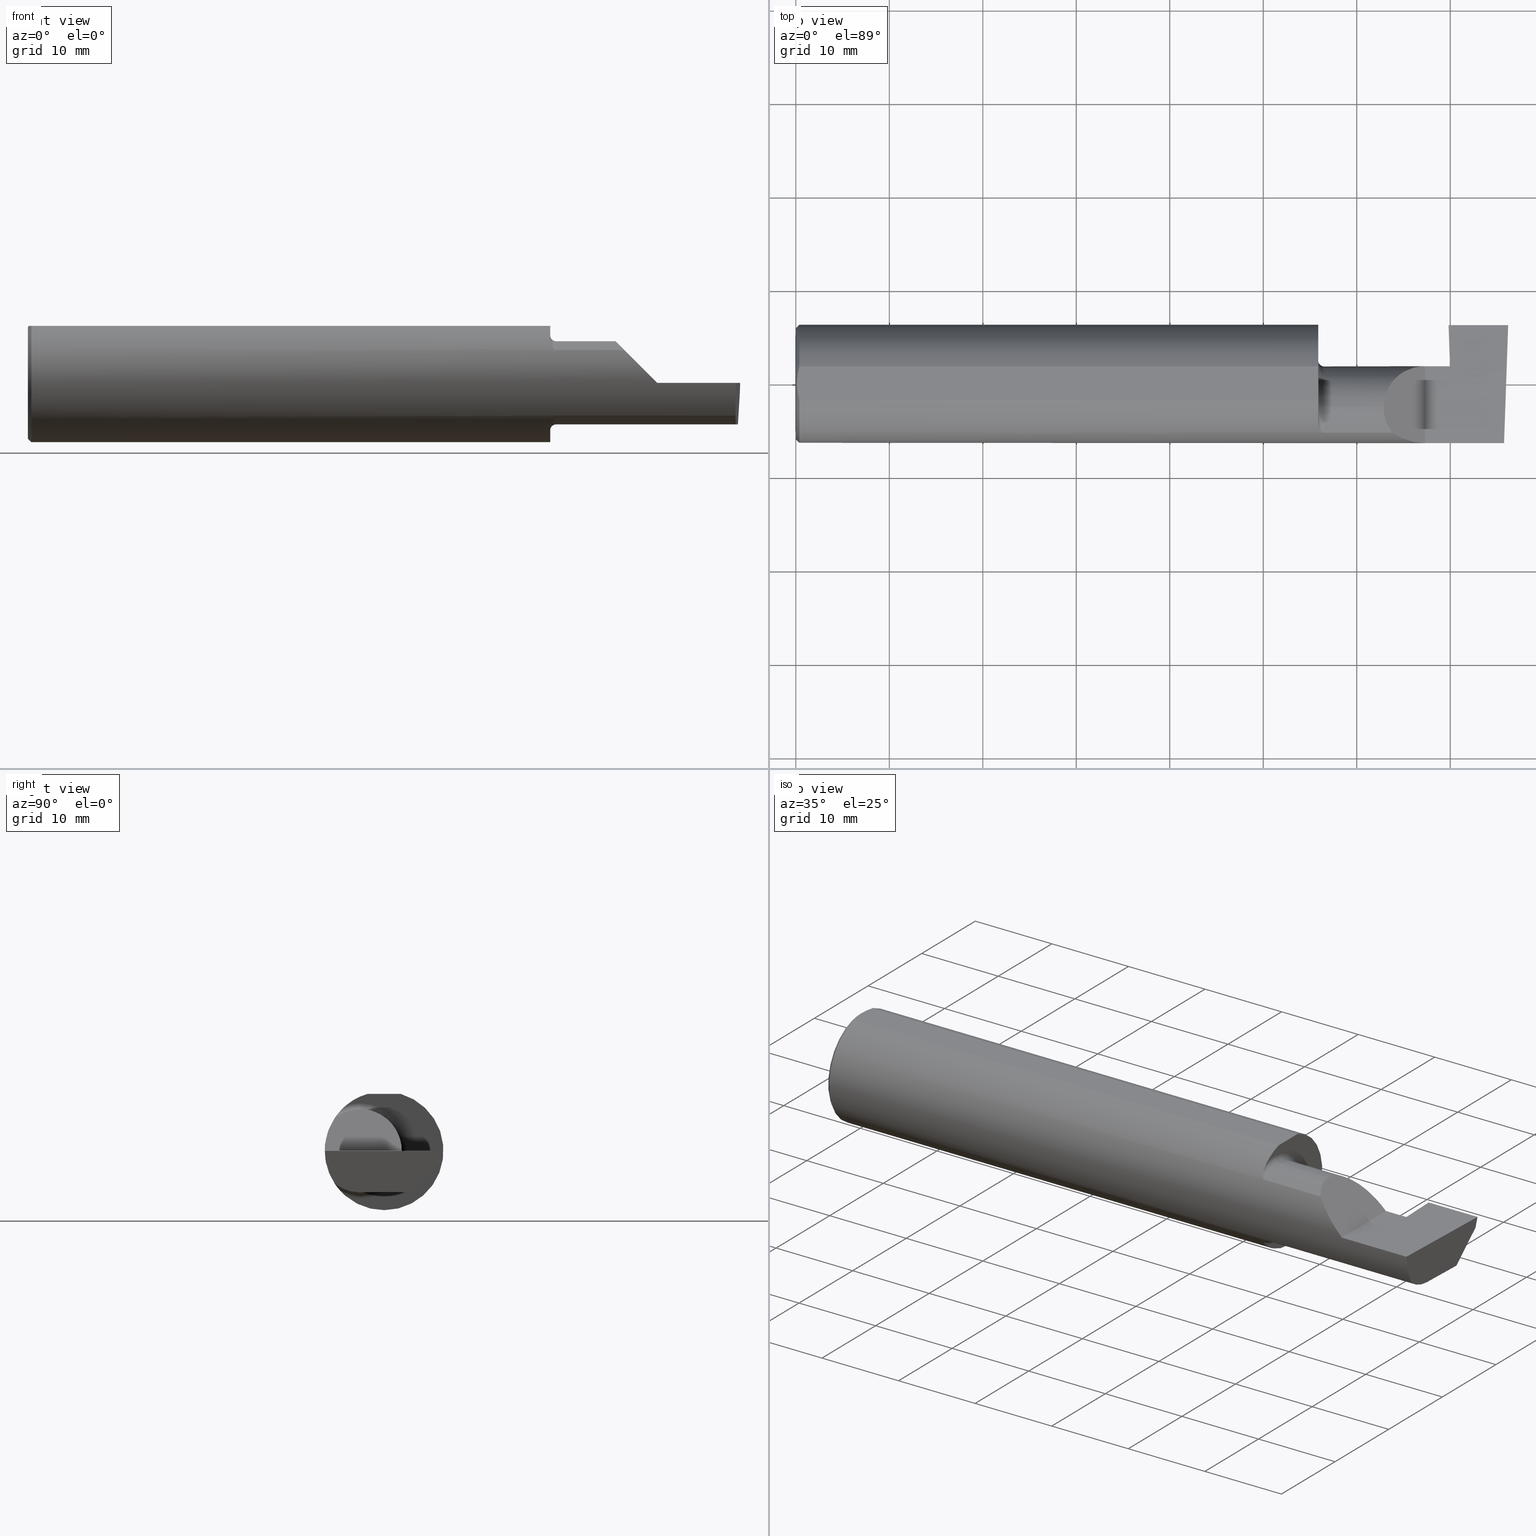
[diagram: canonical four-view strip — front | top / right | iso, engineering-drawing reading convention]
A machine part, canonical four-view strip (front | top / right | iso — engineering-drawing reading convention). The complete STEP part file that produces these views, byte-faithful:
ISO-10303-21;
HEADER;
FILE_DESCRIPTION (( 'STEP AP203' ),
    '1' );
FILE_NAME ('221583-GT250-12.STEP',
    '2024-07-23T16:24:13',
    ( '' ),
    ( '' ),
    'SwSTEP 2.0',
    'SolidWorks 2024',
    '' );
FILE_SCHEMA (( 'CONFIG_CONTROL_DESIGN' ));
ENDSEC;

DATA;
#1 = FACE_OUTER_BOUND ( 'NONE', #169, .T. ) ;
#2 = VERTEX_POINT ( 'NONE', #166 ) ;
#3 = EDGE_CURVE ( 'NONE', #703, #124, #544, .T. ) ;
#4 = CARTESIAN_POINT ( 'NONE',  ( 2.981341028891338230, -0.2497592792593359701, -0.04986346618388756008 ) ) ;
#5 = CIRCLE ( 'NONE', #404, 0.2348499999999999754 ) ;
#6 = VECTOR ( 'NONE', #167, 39.37007874015748143 ) ;
#7 = CARTESIAN_POINT ( 'NONE',  ( 2.212616400345755796, -0.2024684335577104644, 0.1464246884265634763 ) ) ;
#8 = EDGE_CURVE ( 'NONE', #24, #102, #738, .T. ) ;
#9 = PLANE ( 'NONE',  #698 ) ;
#10 = CARTESIAN_POINT ( 'NONE',  ( 2.225000000000000089, -0.1008499999999999536, -0.1749999999999999889 ) ) ;
#11 = DIRECTION ( 'NONE',  ( 0.9987827668610291809, 0.03485699000042567774, 0.03489949669461413911 ) ) ;
#12 = CC_DESIGN_PERSON_AND_ORGANIZATION_ASSIGNMENT ( #368, #298, ( #663 ) ) ;
#13 = B_SPLINE_CURVE_WITH_KNOTS ( 'NONE', 3,
 ( #22, #270, #512, #752, #397, #81 ),
 .UNSPECIFIED., .F., .F.,
 ( 4, 2, 4 ),
 ( 0.007845223120669342701, 0.008734561288375080820, 0.009623899456080818940 ),
 .UNSPECIFIED. ) ;
#14 = CARTESIAN_POINT ( 'NONE',  ( 2.200000000000000178, -0.1008499999999999674, 0.000000000000000000 ) ) ;
#15 = APPLICATION_CONTEXT ( 'configuration controlled 3d designs of mechanical parts and assemblies' ) ;
#16 = CIRCLE ( 'NONE', #598, 0.1999999999999999833 ) ;
#17 = CIRCLE ( 'NONE', #601, 0.2498499999999999888 ) ;
#18 = DIRECTION ( 'NONE',  ( 0.000000000000000000, 0.000000000000000000, 1.000000000000000000 ) ) ;
#19 = EDGE_LOOP ( 'NONE', ( #268, #362, #130, #402 ) ) ;
#20 = LINE ( 'NONE', #269, #687 ) ;
#21 = EDGE_CURVE ( 'NONE', #184, #516, #609, .T. ) ;
#22 = CARTESIAN_POINT ( 'NONE',  ( 0.004999999999999471013, 5.665694022114171174E-17, 0.2398500000000000076 ) ) ;
#23 = CARTESIAN_POINT ( 'NONE',  ( 2.511704467739034552, -0.2080850024789292485, 0.1382955322609664139 ) ) ;
#24 = VERTEX_POINT ( 'NONE', #51 ) ;
#25 = DIRECTION ( 'NONE',  ( 0.000000000000000000, 0.000000000000000000, 1.000000000000000000 ) ) ;
#26 = CARTESIAN_POINT ( 'NONE',  ( 2.225000000000000089, -0.1008499999999999674, 0.000000000000000000 ) ) ;
#27 = VECTOR ( 'NONE', #440, 39.37007874015748143 ) ;
#28 = AXIS2_PLACEMENT_3D ( 'NONE', #694, #574, #200 ) ;
#29 = DIRECTION ( 'NONE',  ( -1.000000000000000000, -0.000000000000000000, -0.000000000000000000 ) ) ;
#30 = DIRECTION ( 'NONE',  ( 0.000000000000000000, -0.000000000000000000, 1.000000000000000000 ) ) ;
#31 = ADVANCED_FACE ( 'NONE', ( #244 ), #430, .F. ) ;
#32 = CARTESIAN_POINT ( 'NONE',  ( 2.200000000000000178, -0.1008499999999999674, 0.000000000000000000 ) ) ;
#33 = CARTESIAN_POINT ( 'NONE',  ( 3.000000000000000444, -0.1008499999999999813, -0.1749999999999999889 ) ) ;
#34 = ORIENTED_EDGE ( 'NONE', *, *, #487, .F. ) ;
#35 = CARTESIAN_POINT ( 'NONE',  ( 2.990479469570817894, 0.1058243371481679268, -0.1749999999999999889 ) ) ;
#36 = DIRECTION ( 'NONE',  ( 0.000000000000000000, 0.000000000000000000, 1.000000000000000000 ) ) ;
#37 = DIRECTION ( 'NONE',  ( 1.000000000000000000, 0.000000000000000000, 0.000000000000000000 ) ) ;
#38 = ORIENTED_EDGE ( 'NONE', *, *, #199, .T. ) ;
#39 = CARTESIAN_POINT ( 'NONE',  ( 2.552984868485333347, -0.2355204011147992438, 0.09701513151466735485 ) ) ;
#40 = CARTESIAN_POINT ( 'NONE',  ( 0.01499999999999999944, 0.000000000000000000, 0.000000000000000000 ) ) ;
#41 = DIRECTION ( 'NONE',  ( 0.000000000000000000, 0.000000000000000000, -1.000000000000000000 ) ) ;
#42 = ORIENTED_EDGE ( 'NONE', *, *, #137, .T. ) ;
#43 = VECTOR ( 'NONE', #483, 39.37007874015748854 ) ;
#44 = PERSON_AND_ORGANIZATION ( #391, #406 ) ;
#45 = CARTESIAN_POINT ( 'NONE',  ( 0.000000000000000000, 0.000000000000000000, 0.000000000000000000 ) ) ;
#46 = LINE ( 'NONE', #291, #43 ) ;
#47 = ORIENTED_EDGE ( 'NONE', *, *, #255, .T. ) ;
#48 = CARTESIAN_POINT ( 'NONE',  ( 2.999675955819515405, 0.2447082080031273699, -0.009112891793843752586 ) ) ;
#49 = DIRECTION ( 'NONE',  ( 0.06975643500179386225, 0.001215747646128943413, -0.9975633121428941763 ) ) ;
#50 = ORIENTED_EDGE ( 'NONE', *, *, #396, .T. ) ;
#51 = CARTESIAN_POINT ( 'NONE',  ( 0.000000000000000000, 0.000000000000000000, -0.2348499999999999754 ) ) ;
#52 = LINE ( 'NONE', #672, #563 ) ;
#53 = VERTEX_POINT ( 'NONE', #612 ) ;
#54 = AXIS2_PLACEMENT_3D ( 'NONE', #151, #155, #653 ) ;
#55 = VERTEX_POINT ( 'NONE', #618 ) ;
#56 = EDGE_CURVE ( 'NONE', #64, #53, #757, .T. ) ;
#57 = CARTESIAN_POINT ( 'NONE',  ( 2.199999999999998845, -0.1665641037263009827, 0.1863429692936361126 ) ) ;
#58 = ORIENTED_EDGE ( 'NONE', *, *, #164, .F. ) ;
#59 = ORIENTED_EDGE ( 'NONE', *, *, #641, .T. ) ;
#60 = APPROVAL ( #309, 'UNSPECIFIED' ) ;
#61 = FACE_OUTER_BOUND ( 'NONE', #163, .T. ) ;
#62 = DIRECTION ( 'NONE',  ( -0.04274495231316484400, 0.2585824888546562894, 0.9650429863531866381 ) ) ;
#63 = LINE ( 'NONE', #69, #774 ) ;
#64 = VERTEX_POINT ( 'NONE', #294 ) ;
#65 = EDGE_CURVE ( 'NONE', #53, #786, #67, .T. ) ;
#66 = CARTESIAN_POINT ( 'NONE',  ( 2.751037492458068279, 0.06794054266098323303, -0.04620338416404774079 ) ) ;
#67 =( BOUNDED_CURVE ( )  B_SPLINE_CURVE ( 3, ( #66, #390, #381, #501 ),
 .UNSPECIFIED., .F., .F. ) 
 B_SPLINE_CURVE_WITH_KNOTS ( ( 4, 4 ),
 ( 4.443983221546778495, 4.709965478757016655 ),
 .UNSPECIFIED. ) 
 CURVE ( )  GEOMETRIC_REPRESENTATION_ITEM ( )  RATIONAL_B_SPLINE_CURVE ( ( 1.000000000000000000, 0.9941131374841131185, 0.9941131374841131185, 1.000000000000000000 ) ) 
 REPRESENTATION_ITEM ( '' )  );
#68 = VECTOR ( 'NONE', #522, 39.37007874015748854 ) ;
#69 = CARTESIAN_POINT ( 'NONE',  ( 0.000000000000000000, 0.06997856814768359246, 0.2398500000000000076 ) ) ;
#70 = DIRECTION ( 'NONE',  ( 0.03489949670249940794, 0.9993908270190957621, -4.452728370532699971E-18 ) ) ;
#71 = PLANE ( 'NONE',  #613 ) ;
#72 = LINE ( 'NONE', #328, #209 ) ;
#73 = CARTESIAN_POINT ( 'NONE',  ( 2.983262242683407006, -0.1008499999999999674, -0.1749999999999999889 ) ) ;
#74 = ADVANCED_FACE ( 'NONE', ( #232 ), #9, .F. ) ;
#75 = CLOSED_SHELL ( 'NONE', ( #176, #385, #403, #697, #202, #336, #214, #327, #85, #438, #519, #795, #711, #754, #503, #735, #193, #657, #74, #31, #227, #238 ) ) ;
#76 = AXIS2_PLACEMENT_3D ( 'NONE', #344, #765, #647 ) ;
#77 = DIRECTION ( 'NONE',  ( -1.224646799147351482E-16, 0.000000000000000000, -1.000000000000000000 ) ) ;
#78 = EDGE_LOOP ( 'NONE', ( #369, #304, #412, #768 ) ) ;
#79 = FACE_OUTER_BOUND ( 'NONE', #19, .T. ) ;
#80 = PRODUCT_DEFINITION ( 'UNKNOWN', '', #701, #317 ) ;
#81 = CARTESIAN_POINT ( 'NONE',  ( 0.01499999999999999944, -0.06997856814768359246, 0.2398500000000000076 ) ) ;
#82 = ORIENTED_EDGE ( 'NONE', *, *, #534, .T. ) ;
#83 = DIRECTION ( 'NONE',  ( -0.03489949670249940100, -0.9993908270190957621, 0.000000000000000000 ) ) ;
#84 = VERTEX_POINT ( 'NONE', #316 ) ;
#85 = ADVANCED_FACE ( 'NONE', ( #127 ), #71, .F. ) ;
#86 = CARTESIAN_POINT ( 'NONE',  ( 0.01499999999999998036, 0.06997856814768359246, 0.2398500000000000076 ) ) ;
#87 = AXIS2_PLACEMENT_3D ( 'NONE', #464, #704, #511 ) ;
#88 = LOCAL_TIME ( 9, 24, 13.00000000000000000, #179 ) ;
#89 = CARTESIAN_POINT ( 'NONE',  ( 2.487690731615568307, -0.1771157075472510889, 0.1623092683844330197 ) ) ;
#90 = ORIENTED_EDGE ( 'NONE', *, *, #207, .F. ) ;
#91 = APPROVAL ( #376, 'UNSPECIFIED' ) ;
#92 = CARTESIAN_POINT ( 'NONE',  ( 2.475000000000001421, -0.1008499999999999674, 0.1749999999999999889 ) ) ;
#93 = FACE_OUTER_BOUND ( 'NONE', #528, .T. ) ;
#94 = LINE ( 'NONE', #619, #158 ) ;
#95 = ORIENTED_EDGE ( 'NONE', *, *, #559, .F. ) ;
#96 = CARTESIAN_POINT ( 'NONE',  ( 2.650000000000000355, -0.2498499999999999610, 4.286263797015727350E-17 ) ) ;
#97 = MECHANICAL_CONTEXT ( 'NONE', #15, 'mechanical' ) ;
#98 = UNCERTAINTY_MEASURE_WITH_UNIT (LENGTH_MEASURE( 1.000000000000000082E-05 ), #756, 'distance_accuracy_value', 'NONE');
#99 = CARTESIAN_POINT ( 'NONE',  ( 2.200000000000000178, -0.2498499999999999888, 0.2398500000000000076 ) ) ;
#100 = VERTEX_POINT ( 'NONE', #747 ) ;
#101 = APPROVAL_ROLE ( '' ) ;
#102 = VERTEX_POINT ( 'NONE', #326 ) ;
#103 = EDGE_CURVE ( 'NONE', #642, #140, #358, .T. ) ;
#104 = CARTESIAN_POINT ( 'NONE',  ( 2.221700027347579098, -0.2077785947292770941, -0.1387580622202821690 ) ) ;
#105 = ORIENTED_EDGE ( 'NONE', *, *, #3, .T. ) ;
#106 = VECTOR ( 'NONE', #527, 39.37007874015748854 ) ;
#107 = CC_DESIGN_SECURITY_CLASSIFICATION ( #628, ( #701 ) ) ;
#108 = PERSON_AND_ORGANIZATION ( #391, #406 ) ;
#109 = ORIENTED_EDGE ( 'NONE', *, *, #448, .F. ) ;
#110 = EDGE_CURVE ( 'NONE', #682, #355, #399, .T. ) ;
#111 = LINE ( 'NONE', #785, #660 ) ;
#112 = ORIENTED_EDGE ( 'NONE', *, *, #453, .T. ) ;
#113 = ORIENTED_EDGE ( 'NONE', *, *, #414, .T. ) ;
#114 = FACE_OUTER_BOUND ( 'NONE', #346, .T. ) ;
#115 = ORIENTED_EDGE ( 'NONE', *, *, #267, .F. ) ;
#116 = EDGE_CURVE ( 'NONE', #463, #237, #265, .T. ) ;
#117 = APPROVAL_DATE_TIME ( #243, #91 ) ;
#118 = VERTEX_POINT ( 'NONE', #560 ) ;
#119 = DIRECTION ( 'NONE',  ( 0.000000000000000000, 0.000000000000000000, 1.000000000000000000 ) ) ;
#120 = VERTEX_POINT ( 'NONE', #260 ) ;
#121 = TOROIDAL_SURFACE ( 'NONE', #256, 0.1999999999999999833, 0.02500000000000007772 ) ;
#122 = CIRCLE ( 'NONE', #759, 0.2498499999999999888 ) ;
#123 = CALENDAR_DATE ( 2024, 23, 7 ) ;
#124 = VERTEX_POINT ( 'NONE', #573 ) ;
#125 = CARTESIAN_POINT ( 'NONE',  ( 2.225000000000000089, -0.1008499999999999536, -0.1999999999999999833 ) ) ;
#126 = ORIENTED_EDGE ( 'NONE', *, *, #595, .F. ) ;
#127 = FACE_OUTER_BOUND ( 'NONE', #730, .T. ) ;
#128 = EDGE_CURVE ( 'NONE', #102, #84, #20, .T. ) ;
#129 = CARTESIAN_POINT ( 'NONE',  ( 2.217647060162628136, -0.2062109266231183791, 0.1410799729252286971 ) ) ;
#130 = ORIENTED_EDGE ( 'NONE', *, *, #571, .F. ) ;
#131 = ADVANCED_BREP_SHAPE_REPRESENTATION ( '221583-GT250-12', ( #156, #386 ), #257 ) ;
#132 =( BOUNDED_CURVE ( )  B_SPLINE_CURVE ( 3, ( #23, #89, #521, #762 ),
 .UNSPECIFIED., .F., .F. ) 
 B_SPLINE_CURVE_WITH_KNOTS ( ( 4, 4 ),
 ( 5.623622464215678463, 6.283185307179586232 ),
 .UNSPECIFIED. ) 
 CURVE ( )  GEOMETRIC_REPRESENTATION_ITEM ( )  RATIONAL_B_SPLINE_CURVE ( ( 1.000000000000000000, 0.9640754331822828371, 0.9640754331822828371, 1.000000000000000000 ) ) 
 REPRESENTATION_ITEM ( '' )  );
#133 = CARTESIAN_POINT ( 'NONE',  ( 2.199999999999999289, -0.1616050818046604332, 0.1905487340154980169 ) ) ;
#134 = AXIS2_PLACEMENT_3D ( 'NONE', #580, #575, #25 ) ;
#135 = DIRECTION ( 'NONE',  ( -0.7071067811865454633, 0.000000000000000000, 0.7071067811865495711 ) ) ;
#136 = DIRECTION ( 'NONE',  ( 1.000000000000000000, -0.000000000000000000, -0.000000000000000000 ) ) ;
#137 = EDGE_CURVE ( 'NONE', #682, #100, #235, .T. ) ;
#138 = DIRECTION ( 'NONE',  ( 0.000000000000000000, 0.000000000000000000, -1.000000000000000000 ) ) ;
#139 = CARTESIAN_POINT ( 'NONE',  ( 3.000000000000000444, -0.2500000000000000555, 0.000000000000000000 ) ) ;
#140 = VERTEX_POINT ( 'NONE', #446 ) ;
#141 = CARTESIAN_POINT ( 'NONE',  ( 4.499279347985559139E-32, -0.2498499999999999610, 3.673940397442053459E-16 ) ) ;
#142 = VECTOR ( 'NONE', #29, 39.37007874015748143 ) ;
#143 = AXIS2_PLACEMENT_3D ( 'NONE', #283, #229, #477 ) ;
#144 = DIRECTION ( 'NONE',  ( -1.000000000000000000, -0.000000000000000000, -0.000000000000000000 ) ) ;
#145 = ORIENTED_EDGE ( 'NONE', *, *, #297, .F. ) ;
#146 = DIRECTION ( 'NONE',  ( 0.04426435506670334946, 0.000000000000000000, -0.9990198530912830499 ) ) ;
#147 = DIRECTION ( 'NONE',  ( 0.000000000000000000, 0.000000000000000000, 1.000000000000000000 ) ) ;
#148 = EDGE_CURVE ( 'NONE', #542, #118, #443, .T. ) ;
#149 = ORIENTED_EDGE ( 'NONE', *, *, #721, .F. ) ;
#150 = DIRECTION ( 'NONE',  ( -0.03489949670249939406, -0.9993908270190957621, 2.445004146800611436E-16 ) ) ;
#151 = CARTESIAN_POINT ( 'NONE',  ( 0.01499999999999999944, 0.000000000000000000, 0.000000000000000000 ) ) ;
#152 = DIRECTION ( 'NONE',  ( -0.04317993108637931121, -0.7064472710512011977, -0.7064472710511988662 ) ) ;
#153 = ORIENTED_EDGE ( 'NONE', *, *, #680, .T. ) ;
#154 = CARTESIAN_POINT ( 'NONE',  ( 2.475000000000001421, 0.001662626584708371512, 0.1749999999999999889 ) ) ;
#155 = DIRECTION ( 'NONE',  ( -1.000000000000000000, -0.000000000000000000, -0.000000000000000000 ) ) ;
#156 = MANIFOLD_SOLID_BREP ( 'Front Angle', #75 ) ;
#157 = AXIS2_PLACEMENT_3D ( 'NONE', #139, #77, #705 ) ;
#158 = VECTOR ( 'NONE', #681, 39.37007874015748143 ) ;
#159 = CARTESIAN_POINT ( 'NONE',  ( 3.000000000000000444, 0.1783256080881261973, -0.1750000000000000444 ) ) ;
#160 = ORIENTED_EDGE ( 'NONE', *, *, #778, .F. ) ;
#161 = DIRECTION ( 'NONE',  ( 1.000000000000000000, 0.000000000000000000, 0.000000000000000000 ) ) ;
#162 = LINE ( 'NONE', #541, #106 ) ;
#163 = EDGE_LOOP ( 'NONE', ( #234, #34, #315, #220 ) ) ;
#164 = EDGE_CURVE ( 'NONE', #719, #184, #625, .T. ) ;
#165 =( NAMED_UNIT ( * ) PLANE_ANGLE_UNIT ( ) SI_UNIT ( $, .RADIAN. ) );
#166 = CARTESIAN_POINT ( 'NONE',  ( 2.225000000000000089, -0.2080850024789291375, -0.1382955322609665805 ) ) ;
#167 = DIRECTION ( 'NONE',  ( -1.000000000000000000, -0.000000000000000000, -0.000000000000000000 ) ) ;
#168 = EDGE_LOOP ( 'NONE', ( #763, #489, #175, #153, #38, #59 ) ) ;
#169 = EDGE_LOOP ( 'NONE', ( #603, #90, #329, #476, #284, #288 ) ) ;
#170 = EDGE_CURVE ( 'NONE', #64, #597, #437, .T. ) ;
#171 = DIRECTION ( 'NONE',  ( -1.000000000000000000, -0.000000000000000000, -0.000000000000000000 ) ) ;
#172 = ORIENTED_EDGE ( 'NONE', *, *, #128, .T. ) ;
#173 = VECTOR ( 'NONE', #432, 39.37007874015748143 ) ;
#174 = PERSON_AND_ORGANIZATION ( #391, #406 ) ;
#175 = ORIENTED_EDGE ( 'NONE', *, *, #359, .T. ) ;
#176 = ADVANCED_FACE ( 'NONE', ( #195 ), #570, .T. ) ;
#177 = CARTESIAN_POINT ( 'NONE',  ( 2.199999999999999734, -0.1008499999999999536, -0.1999999999999999833 ) ) ;
#178 = EDGE_LOOP ( 'NONE', ( #655, #551, #671, #408 ) ) ;
#179 = COORDINATED_UNIVERSAL_TIME_OFFSET ( 8, 0, .BEHIND. ) ;
#180 = VERTEX_POINT ( 'NONE', #568 ) ;
#181 = CARTESIAN_POINT ( 'NONE',  ( 2.757811768722755019, 0.1698733669843043859, -0.1750000000000000444 ) ) ;
#182 = ORIENTED_EDGE ( 'NONE', *, *, #56, .T. ) ;
#183 = EDGE_CURVE ( 'NONE', #725, #118, #451, .T. ) ;
#184 = VERTEX_POINT ( 'NONE', #505 ) ;
#185 = CARTESIAN_POINT ( 'NONE',  ( 2.980479240051444378, -0.2080850024789291652, -0.1382955322609665250 ) ) ;
#186 = VERTEX_POINT ( 'NONE', #92 ) ;
#187 = AXIS2_PLACEMENT_3D ( 'NONE', #772, #665, #41 ) ;
#188 = APPROVAL_PERSON_ORGANIZATION ( #798, #91, #425 ) ;
#189 = DIRECTION ( 'NONE',  ( 0.03492071764873293932, 0.000000000000000000, -0.9993900857417475914 ) ) ;
#190 = CARTESIAN_POINT ( 'NONE',  ( 2.206159563508733434, -0.1933019864360851492, 0.1584298865564828795 ) ) ;
#191 = ORIENTED_EDGE ( 'NONE', *, *, #116, .F. ) ;
#192 = CARTESIAN_POINT ( 'NONE',  ( 2.982660284539054629, -0.2493944837933358694, 2.123502703737254632E-18 ) ) ;
#193 = ADVANCED_FACE ( 'NONE', ( #79 ), #702, .F. ) ;
#194 = CARTESIAN_POINT ( 'NONE',  ( 2.200000000000000178, -0.1008499999999999674, 0.1749999999999999889 ) ) ;
#195 = FACE_OUTER_BOUND ( 'NONE', #307, .T. ) ;
#196 = AXIS2_PLACEMENT_3D ( 'NONE', #197, #387, #138 ) ;
#197 = CARTESIAN_POINT ( 'NONE',  ( 2.200000000000000178, 0.000000000000000000, 0.000000000000000000 ) ) ;
#198 = VECTOR ( 'NONE', #566, 39.37007874015748143 ) ;
#199 = EDGE_CURVE ( 'NONE', #668, #728, #646, .T. ) ;
#200 = DIRECTION ( 'NONE',  ( 0.000000000000000000, 0.000000000000000000, 1.000000000000000000 ) ) ;
#201 = DIRECTION ( 'NONE',  ( 0.000000000000000000, 0.000000000000000000, 1.000000000000000000 ) ) ;
#202 = ADVANCED_FACE ( 'NONE', ( #526 ), #431, .T. ) ;
#203 = FACE_OUTER_BOUND ( 'NONE', #589, .T. ) ;
#204 = DIRECTION ( 'NONE',  ( 0.000000000000000000, 0.000000000000000000, 1.000000000000000000 ) ) ;
#205 = ORIENTED_EDGE ( 'NONE', *, *, #297, .T. ) ;
#206 = PLANE ( 'NONE',  #644 ) ;
#207 = EDGE_CURVE ( 'NONE', #786, #792, #409, .T. ) ;
#208 =( LENGTH_UNIT ( ) NAMED_UNIT ( * ) SI_UNIT ( $, .METRE. ) );
#209 = VECTOR ( 'NONE', #445, 39.37007874015748143 ) ;
#210 = AXIS2_PLACEMENT_3D ( 'NONE', #306, #314, #119 ) ;
#211 = DIRECTION ( 'NONE',  ( -1.000000000000000000, -0.000000000000000000, -0.000000000000000000 ) ) ;
#212 = ORIENTED_EDGE ( 'NONE', *, *, #65, .T. ) ;
#213 = LINE ( 'NONE', #760, #305 ) ;
#214 = ADVANCED_FACE ( 'NONE', ( #514 ), #651, .T. ) ;
#215 = DIRECTION ( 'NONE',  ( -1.000000000000000000, -0.000000000000000000, -0.000000000000000000 ) ) ;
#216 = ORIENTED_EDGE ( 'NONE', *, *, #778, .T. ) ;
#217 = PLANE ( 'NONE',  #496 ) ;
#218 = CARTESIAN_POINT ( 'NONE',  ( 2.725000000000000089, 0.2348243371481683328, -0.04599999999999999922 ) ) ;
#219 = DIRECTION ( 'NONE',  ( 0.02616100201822768243, -0.0009135623211515307490, 0.9996573249755575929 ) ) ;
#220 = ORIENTED_EDGE ( 'NONE', *, *, #766, .T. ) ;
#221 = CARTESIAN_POINT ( 'NONE',  ( 2.751037492458068279, 0.07420629955631043162, -0.04619574797784884584 ) ) ;
#222 = CARTESIAN_POINT ( 'NONE',  ( 0.01499999999999999944, 0.000000000000000000, -0.2498499999999999888 ) ) ;
#223 = VECTOR ( 'NONE', #219, 39.37007874015748854 ) ;
#224 = CC_DESIGN_APPROVAL ( #584, ( #80 ) ) ;
#225 = CARTESIAN_POINT ( 'NONE',  ( 2.199999999999999289, -0.1616050818046604332, 0.1905487340154980169 ) ) ;
#226 = EDGE_LOOP ( 'NONE', ( #212, #230, #109 ) ) ;
#227 = ADVANCED_FACE ( 'NONE', ( #755 ), #217, .F. ) ;
#228 = FACE_OUTER_BOUND ( 'NONE', #480, .T. ) ;
#229 = DIRECTION ( 'NONE',  ( 1.000000000000000000, 0.000000000000000000, 0.000000000000000000 ) ) ;
#230 = ORIENTED_EDGE ( 'NONE', *, *, #207, .T. ) ;
#231 = COORDINATED_UNIVERSAL_TIME_OFFSET ( 8, 0, .BEHIND. ) ;
#232 = FACE_OUTER_BOUND ( 'NONE', #670, .T. ) ;
#233 = DIRECTION ( 'NONE',  ( 0.000000000000000000, -1.000000000000000000, 2.446352684939717234E-16 ) ) ;
#234 = ORIENTED_EDGE ( 'NONE', *, *, #690, .F. ) ;
#235 =( BOUNDED_CURVE ( )  B_SPLINE_CURVE ( 3, ( #683, #744, #4, #322 ),
 .UNSPECIFIED., .F., .F. ) 
 B_SPLINE_CURVE_WITH_KNOTS ( ( 4, 4 ),
 ( 0.05713034791898994463, 0.6418805321922593787 ),
 .UNSPECIFIED. ) 
 CURVE ( )  GEOMETRIC_REPRESENTATION_ITEM ( )  RATIONAL_B_SPLINE_CURVE ( ( 1.000000000000000000, 0.9717080070095530653, 0.9717080070095530653, 1.000000000000000000 ) ) 
 REPRESENTATION_ITEM ( '' )  );
#236 = PERSON_AND_ORGANIZATION_ROLE ( 'creator' ) ;
#237 = VERTEX_POINT ( 'NONE', #398 ) ;
#238 = ADVANCED_FACE ( 'NONE', ( #203 ), #206, .F. ) ;
#239 = AXIS2_PLACEMENT_3D ( 'NONE', #372, #486, #377 ) ;
#240 = CARTESIAN_POINT ( 'NONE',  ( 2.199999999999999289, -0.1616050818046604332, -0.1905487340154980169 ) ) ;
#241 = ORIENTED_EDGE ( 'NONE', *, *, #608, .F. ) ;
#242 = LOCAL_TIME ( 9, 24, 13.00000000000000000, #617 ) ;
#243 = DATE_AND_TIME ( #475, #88 ) ;
#244 = FACE_OUTER_BOUND ( 'NONE', #753, .T. ) ;
#245 = EDGE_CURVE ( 'NONE', #55, #311, #281, .T. ) ;
#246 = DIRECTION ( 'NONE',  ( 0.000000000000000000, 0.000000000000000000, -1.000000000000000000 ) ) ;
#247 = ORIENTED_EDGE ( 'NONE', *, *, #579, .F. ) ;
#248 = DATE_AND_TIME ( #783, #242 ) ;
#249 = ORIENTED_EDGE ( 'NONE', *, *, #571, .T. ) ;
#250 = LINE ( 'NONE', #492, #482 ) ;
#251 = ORIENTED_EDGE ( 'NONE', *, *, #8, .F. ) ;
#252 = CARTESIAN_POINT ( 'NONE',  ( 2.760029432995152465, -0.1008500000000000091, -0.1749999999999999889 ) ) ;
#253 = PLANE ( 'NONE',  #645 ) ;
#254 = ORIENTED_EDGE ( 'NONE', *, *, #348, .T. ) ;
#255 = EDGE_CURVE ( 'NONE', #24, #727, #213, .T. ) ;
#256 = AXIS2_PLACEMENT_3D ( 'NONE', #577, #275, #18 ) ;
#257 =( GEOMETRIC_REPRESENTATION_CONTEXT ( 3 ) GLOBAL_UNCERTAINTY_ASSIGNED_CONTEXT ( ( #98 ) ) GLOBAL_UNIT_ASSIGNED_CONTEXT ( ( #756, #165, #576 ) ) REPRESENTATION_CONTEXT ( 'NONE', 'WORKASPACE' ) );
#258 = CARTESIAN_POINT ( 'NONE',  ( 2.225000000000000089, -0.1008499999999999674, 0.1999999999999999833 ) ) ;
#259 = CARTESIAN_POINT ( 'NONE',  ( 2.225000000000000089, -0.2080850024789292485, 0.1382955322609664972 ) ) ;
#260 = CARTESIAN_POINT ( 'NONE',  ( 2.200000000000000178, -0.06997856814768374512, 0.2398500000000000076 ) ) ;
#261 = CARTESIAN_POINT ( 'NONE',  ( 2.199999999999999289, -0.1616050818046604332, -0.1905487340154980169 ) ) ;
#262 = DIRECTION ( 'NONE',  ( -1.000000000000000000, -0.000000000000000000, -0.000000000000000000 ) ) ;
#263 = EDGE_CURVE ( 'NONE', #186, #578, #569, .T. ) ;
#264 = VECTOR ( 'NONE', #794, 39.37007874015748143 ) ;
#265 = LINE ( 'NONE', #331, #506 ) ;
#266 = AXIS2_PLACEMENT_3D ( 'NONE', #125, #623, #746 ) ;
#267 = EDGE_CURVE ( 'NONE', #597, #2, #626, .T. ) ;
#268 = ORIENTED_EDGE ( 'NONE', *, *, #579, .T. ) ;
#269 = CARTESIAN_POINT ( 'NONE',  ( 0.01499999999999999944, 3.059780027669661931E-17, 0.2498499999999999888 ) ) ;
#270 = CARTESIAN_POINT ( 'NONE',  ( 0.004999999999999737293, -0.01183939972798749192, 0.2398500000000000631 ) ) ;
#271 = ORIENTED_EDGE ( 'NONE', *, *, #559, .T. ) ;
#272 = EDGE_CURVE ( 'NONE', #416, #498, #648, .T. ) ;
#273 = CARTESIAN_POINT ( 'NONE',  ( 2.994767799596354418, 0.2473327124642303587, -0.1999314649951115241 ) ) ;
#274 = APPLICATION_PROTOCOL_DEFINITION ( 'international standard', 'config_control_design', 1994, #15 ) ;
#275 = DIRECTION ( 'NONE',  ( -1.000000000000000000, -0.000000000000000000, -0.000000000000000000 ) ) ;
#276 = ORIENTED_EDGE ( 'NONE', *, *, #680, .F. ) ;
#277 = LINE ( 'NONE', #456, #393 ) ;
#278 = AXIS2_PLACEMENT_3D ( 'NONE', #401, #211, #341 ) ;
#279 = LOCAL_TIME ( 9, 24, 13.00000000000000000, #231 ) ;
#280 = CARTESIAN_POINT ( 'NONE',  ( 0.01499999999999998036, 0.06997856814768359246, 0.2398500000000000076 ) ) ;
#281 = LINE ( 'NONE', #449, #546 ) ;
#282 = DIRECTION ( 'NONE',  ( -1.000000000000000000, -0.000000000000000000, -0.000000000000000000 ) ) ;
#283 = CARTESIAN_POINT ( 'NONE',  ( 0.000000000000000000, 0.000000000000000000, 0.000000000000000000 ) ) ;
#284 = ORIENTED_EDGE ( 'NONE', *, *, #510, .F. ) ;
#285 = CARTESIAN_POINT ( 'NONE',  ( 0.01181966702888963446, 0.05862357455657472849, 0.2398500000000000631 ) ) ;
#286 = EDGE_CURVE ( 'NONE', #311, #355, #277, .T. ) ;
#287 = CARTESIAN_POINT ( 'NONE',  ( 2.511704467739034552, -0.2080850024789292485, 0.1382955322609664139 ) ) ;
#288 = ORIENTED_EDGE ( 'NONE', *, *, #199, .F. ) ;
#289 = DIRECTION ( 'NONE',  ( 0.000000000000000000, 0.000000000000000000, 1.000000000000000000 ) ) ;
#290 = TOROIDAL_SURFACE ( 'NONE', #419, 0.1999999999999999833, 0.02500000000000007772 ) ;
#291 = CARTESIAN_POINT ( 'NONE',  ( 2.762013260303944229, 0.07439359513054548401, -0.1998782938404957688 ) ) ;
#292 = ORIENTED_EDGE ( 'NONE', *, *, #110, .F. ) ;
#293 = PERSON_AND_ORGANIZATION ( #391, #406 ) ;
#294 = CARTESIAN_POINT ( 'NONE',  ( 2.760029432995152465, -0.1008500000000000091, -0.1749999999999999889 ) ) ;
#295 = CARTESIAN_POINT ( 'NONE',  ( 2.766634504791320115, -0.2581443322840843435, 2.857903067387466250E-17 ) ) ;
#296 = ORIENTED_EDGE ( 'NONE', *, *, #429, .T. ) ;
#297 = EDGE_CURVE ( 'NONE', #719, #416, #352, .T. ) ;
#298 = PERSON_AND_ORGANIZATION_ROLE ( 'design_owner' ) ;
#299 = ORIENTED_EDGE ( 'NONE', *, *, #313, .T. ) ;
#300 = FACE_OUTER_BOUND ( 'NONE', #784, .T. ) ;
#301 = ORIENTED_EDGE ( 'NONE', *, *, #534, .F. ) ;
#302 = CC_DESIGN_PERSON_AND_ORGANIZATION_ASSIGNMENT ( #293, #731, ( #628 ) ) ;
#303 = APPROVAL_DATE_TIME ( #599, #584 ) ;
#304 = ORIENTED_EDGE ( 'NONE', *, *, #690, .T. ) ;
#305 = VECTOR ( 'NONE', #707, 39.37007874015748143 ) ;
#306 = CARTESIAN_POINT ( 'NONE',  ( 2.199999999999999734, -0.1008499999999999674, 0.000000000000000000 ) ) ;
#307 = EDGE_LOOP ( 'NONE', ( #700, #540, #421, #600, #620, #484, #426, #695 ) ) ;
#308 = AXIS2_PLACEMENT_3D ( 'NONE', #26, #282, #147 ) ;
#309 = APPROVAL_STATUS ( 'not_yet_approved' ) ;
#310 = CARTESIAN_POINT ( 'NONE',  ( 2.487000000000000099, -0.2080850024789291652, 0.1382955322609665250 ) ) ;
#311 = VERTEX_POINT ( 'NONE', #35 ) ;
#312 = DIRECTION ( 'NONE',  ( 0.000000000000000000, 0.000000000000000000, 1.000000000000000000 ) ) ;
#313 = EDGE_CURVE ( 'NONE', #371, #84, #638, .T. ) ;
#314 = DIRECTION ( 'NONE',  ( -1.000000000000000000, -0.000000000000000000, -0.000000000000000000 ) ) ;
#315 = ORIENTED_EDGE ( 'NONE', *, *, #148, .T. ) ;
#316 = CARTESIAN_POINT ( 'NONE',  ( 0.004999999999999471013, 5.665694022114171174E-17, 0.2398500000000000076 ) ) ;
#317 = DESIGN_CONTEXT ( 'detailed design', #436, 'design' ) ;
#318 = DIRECTION ( 'NONE',  ( 0.000000000000000000, 0.001218716374663524277, -0.9999992573649232330 ) ) ;
#319 = ORIENTED_EDGE ( 'NONE', *, *, #524, .F. ) ;
#320 = CIRCLE ( 'NONE', #739, 0.1999999999999999833 ) ;
#321 = VECTOR ( 'NONE', #323, 39.37007874015748143 ) ;
#322 = CARTESIAN_POINT ( 'NONE',  ( 2.982632426700501771, -0.2498495826666993214, -0.0004566631977676544681 ) ) ;
#323 = DIRECTION ( 'NONE',  ( -0.03487823687994490163, 0.9993915692020551855, -2.444309580554223547E-16 ) ) ;
#324 = EDGE_CURVE ( 'NONE', #102, #24, #5, .T. ) ;
#325 = DIRECTION ( 'NONE',  ( 0.000000000000000000, 0.000000000000000000, 1.000000000000000000 ) ) ;
#326 = CARTESIAN_POINT ( 'NONE',  ( 0.000000000000000000, 2.967931517733610643E-17, 0.2348499999999999754 ) ) ;
#327 = ADVANCED_FACE ( 'NONE', ( #337 ), #450, .F. ) ;
#328 = CARTESIAN_POINT ( 'NONE',  ( 2.750974143662802796, 0.2357313737265644971, -0.04509296342160385579 ) ) ;
#329 = ORIENTED_EDGE ( 'NONE', *, *, #545, .F. ) ;
#330 = CONICAL_SURFACE ( 'NONE', #187, 0.2498499999999999888, 0.7853981633974485010 ) ;
#331 = CARTESIAN_POINT ( 'NONE',  ( 2.748956148857242709, 0.2474152743077227268, 0.0009900171943637372813 ) ) ;
#332 = CC_DESIGN_APPROVAL ( #60, ( #701 ) ) ;
#333 = CARTESIAN_POINT ( 'NONE',  ( 2.997854602263704482, 0.2264855386240996193, -0.05433879852406866412 ) ) ;
#334 = DIRECTION ( 'NONE',  ( 1.000000000000000000, 0.000000000000000000, -0.000000000000000000 ) ) ;
#335 = DIRECTION ( 'NONE',  ( 0.000000000000000000, -0.7071067811865463515, 0.7071067811865486830 ) ) ;
#336 = ADVANCED_FACE ( 'NONE', ( #588 ), #389, .T. ) ;
#337 = FACE_OUTER_BOUND ( 'NONE', #741, .T. ) ;
#338 = ORIENTED_EDGE ( 'NONE', *, *, #745, .F. ) ;
#339 = CARTESIAN_POINT ( 'NONE',  ( 2.650000000000000355, 0.07414999999999997982, 4.286263797015727350E-17 ) ) ;
#340 = CARTESIAN_POINT ( 'NONE',  ( 2.761145020370094016, 0.07436327552395197160, -0.1750000000000000167 ) ) ;
#341 = DIRECTION ( 'NONE',  ( 0.000000000000000000, 0.000000000000000000, 1.000000000000000000 ) ) ;
#342 = CARTESIAN_POINT ( 'NONE',  ( 2.511704467739034552, -0.2080850024789292485, 0.1382955322609664139 ) ) ;
#343 = AXIS2_PLACEMENT_3D ( 'NONE', #509, #262, #201 ) ;
#344 = CARTESIAN_POINT ( 'NONE',  ( 2.200000000000000178, 0.2741500000000000048, 0.000000000000000000 ) ) ;
#345 = AXIS2_PLACEMENT_3D ( 'NONE', #218, #335, #775 ) ;
#346 = EDGE_LOOP ( 'NONE', ( #472, #422 ) ) ;
#347 = CARTESIAN_POINT ( 'NONE',  ( 3.000000000000000444, 0.07436327552395202711, -0.1750000000000000167 ) ) ;
#348 = EDGE_CURVE ( 'NONE', #516, #311, #582, .T. ) ;
#349 = DIRECTION ( 'NONE',  ( 0.000000000000000000, 0.000000000000000000, 1.000000000000000000 ) ) ;
#350 = CARTESIAN_POINT ( 'NONE',  ( 2.223318040126429640, -0.2080850024789293318, -0.1382955322609663584 ) ) ;
#351 = ORIENTED_EDGE ( 'NONE', *, *, #396, .F. ) ;
#352 = LINE ( 'NONE', #141, #748 ) ;
#353 = DIRECTION ( 'NONE',  ( -1.000000000000000000, -0.000000000000000000, -0.000000000000000000 ) ) ;
#354 = CARTESIAN_POINT ( 'NONE',  ( 2.201385488563269988, -0.1808287530430326417, -0.1728790649396286516 ) ) ;
#355 = VERTEX_POINT ( 'NONE', #447 ) ;
#356 = DATE_TIME_ROLE ( 'classification_date' ) ;
#357 = CARTESIAN_POINT ( 'NONE',  ( 2.751037492458068279, 0.06794054266098323303, -0.04620338416404774079 ) ) ;
#358 = CIRCLE ( 'NONE', #196, 0.2498499999999999888 ) ;
#359 = EDGE_CURVE ( 'NONE', #355, #64, #630, .T. ) ;
#360 = CC_DESIGN_APPROVAL ( #91, ( #628 ) ) ;
#361 = FACE_OUTER_BOUND ( 'NONE', #168, .T. ) ;
#362 = ORIENTED_EDGE ( 'NONE', *, *, #21, .T. ) ;
#363 = PERSON_AND_ORGANIZATION_ROLE ( 'creator' ) ;
#364 = ORIENTED_EDGE ( 'NONE', *, *, #664, .T. ) ;
#365 = CARTESIAN_POINT ( 'NONE',  ( 2.208176740666625726, -0.1972027065478074714, -0.1535263573771911416 ) ) ;
#366 = ORIENTED_EDGE ( 'NONE', *, *, #324, .F. ) ;
#367 = EDGE_CURVE ( 'NONE', #498, #186, #132, .T. ) ;
#368 = PERSON_AND_ORGANIZATION ( #391, #406 ) ;
#369 = ORIENTED_EDGE ( 'NONE', *, *, #622, .F. ) ;
#370 = CARTESIAN_POINT ( 'NONE',  ( 2.998364291748492949, 0.2348243371481683328, -0.04600000000000000616 ) ) ;
#371 = VERTEX_POINT ( 'NONE', #280 ) ;
#372 = CARTESIAN_POINT ( 'NONE',  ( 2.760047045968829327, -2.671225617168853983, -0.1783844387659876685 ) ) ;
#373 = VECTOR ( 'NONE', #152, 39.37007874015748854 ) ;
#374 = CARTESIAN_POINT ( 'NONE',  ( 2.650000000000000355, 0.07414999999999997982, 4.286263797015727350E-17 ) ) ;
#375 = TOROIDAL_SURFACE ( 'NONE', #467, 0.1999999999999999833, 0.02500000000000007772 ) ;
#376 = APPROVAL_STATUS ( 'not_yet_approved' ) ;
#377 = DIRECTION ( 'NONE',  ( 0.06975638345029228082, 0.000000000000000000, -0.9975640565737800003 ) ) ;
#378 = EDGE_CURVE ( 'NONE', #493, #542, #16, .T. ) ;
#379 = LINE ( 'NONE', #181, #321 ) ;
#380 = ORIENTED_EDGE ( 'NONE', *, *, #21, .F. ) ;
#381 = CARTESIAN_POINT ( 'NONE',  ( 2.749689495973013820, 0.07413112468343002748, -0.01577237022675150729 ) ) ;
#382 = CARTESIAN_POINT ( 'NONE',  ( 2.200000000000000178, 0.000000000000000000, 0.000000000000000000 ) ) ;
#383 = CARTESIAN_POINT ( 'NONE',  ( 2.650000000000000355, -0.2500000000000000555, 4.286263797015727350E-17 ) ) ;
#384 = CARTESIAN_POINT ( 'NONE',  ( 2.202968662030528435, -0.1849684355203379260, 0.1680843977756265595 ) ) ;
#385 = ADVANCED_FACE ( 'NONE', ( #749 ), #750, .T. ) ;
#386 = AXIS2_PLACEMENT_3D ( 'NONE', #770, #715, #161 ) ;
#387 = DIRECTION ( 'NONE',  ( 1.000000000000000000, 0.000000000000000000, 0.000000000000000000 ) ) ;
#388 = PLANE ( 'NONE',  #76 ) ;
#389 = CYLINDRICAL_SURFACE ( 'NONE', #278, 0.2498499999999999888 ) ;
#390 = CARTESIAN_POINT ( 'NONE',  ( 2.750372681961405164, 0.07204909126152565790, -0.03119400421533637113 ) ) ;
#391 = PERSON ( 'UNSPECIFIED', 'UNSPECIFIED', 'UNSPECIFIED', ('UNSPECIFIED'), ('UNSPECIFIED'), ('UNSPECIFIED') ) ;
#392 = ORIENTED_EDGE ( 'NONE', *, *, #414, .F. ) ;
#393 = VECTOR ( 'NONE', #150, 39.37007874015748854 ) ;
#394 = CARTESIAN_POINT ( 'NONE',  ( 2.547487373415292744, 0.07414999999999996594, 0.1025126265847083745 ) ) ;
#395 = APPROVAL_PERSON_ORGANIZATION ( #479, #60, #555 ) ;
#396 = EDGE_CURVE ( 'NONE', #55, #463, #72, .T. ) ;
#397 = CARTESIAN_POINT ( 'NONE',  ( 0.01180609504125290643, -0.05857511741890331081, 0.2398500000000000076 ) ) ;
#398 = CARTESIAN_POINT ( 'NONE',  ( 2.749000000000000110, 0.2471500000000000086, -3.306546357697639493E-19 ) ) ;
#399 =( BOUNDED_CURVE ( )  B_SPLINE_CURVE ( 3, ( #737, #621, #679, #73 ),
 .UNSPECIFIED., .F., .F. ) 
 B_SPLINE_CURVE_WITH_KNOTS ( ( 4, 4 ),
 ( 0.2675252011803429530, 0.9270880441442505004 ),
 .UNSPECIFIED. ) 
 CURVE ( )  GEOMETRIC_REPRESENTATION_ITEM ( )  RATIONAL_B_SPLINE_CURVE ( ( 1.000000000000000000, 0.9640754331822828371, 0.9640754331822828371, 1.000000000000000000 ) ) 
 REPRESENTATION_ITEM ( '' )  );
#400 = CARTESIAN_POINT ( 'NONE',  ( 0.005899890343961326084, 0.02378560009989246285, 0.2398500000000000076 ) ) ;
#401 = CARTESIAN_POINT ( 'NONE',  ( 0.000000000000000000, 0.000000000000000000, 0.000000000000000000 ) ) ;
#402 = ORIENTED_EDGE ( 'NONE', *, *, #116, .T. ) ;
#403 = ADVANCED_FACE ( 'NONE', ( #691 ), #121, .F. ) ;
#404 = AXIS2_PLACEMENT_3D ( 'NONE', #515, #144, #458 ) ;
#405 = CARTESIAN_POINT ( 'NONE',  ( 2.751037492458068279, 0.07420629955631043162, -0.04619574797784884584 ) ) ;
#406 = ORGANIZATION ( 'UNSPECIFIED', 'UNSPECIFIED', '' ) ;
#407 = CARTESIAN_POINT ( 'NONE',  ( 2.749000000000000110, -0.1008499999999999674, 0.000000000000000000 ) ) ;
#408 = ORIENTED_EDGE ( 'NONE', *, *, #595, .T. ) ;
#409 = LINE ( 'NONE', #221, #68 ) ;
#410 = CYLINDRICAL_SURFACE ( 'NONE', #531, 0.1749999999999999889 ) ;
#411 = CARTESIAN_POINT ( 'NONE',  ( 2.218863362722769850, -0.2068301641248772027, -0.1401678546132356373 ) ) ;
#412 = ORIENTED_EDGE ( 'NONE', *, *, #267, .T. ) ;
#413 = CARTESIAN_POINT ( 'NONE',  ( 2.756564601548836535, 0.04629714416892562884, -0.1252712066320194051 ) ) ;
#414 = EDGE_CURVE ( 'NONE', #84, #180, #13, .T. ) ;
#415 = LINE ( 'NONE', #606, #529 ) ;
#416 = VERTEX_POINT ( 'NONE', #420 ) ;
#417 = CARTESIAN_POINT ( 'NONE',  ( 3.000000000000000444, 0.07414999999999997982, 7.390063769656993092E-33 ) ) ;
#418 = AXIS2_PLACEMENT_3D ( 'NONE', #258, #742, #629 ) ;
#419 = AXIS2_PLACEMENT_3D ( 'NONE', #470, #466, #36 ) ;
#420 = CARTESIAN_POINT ( 'NONE',  ( 2.650000000000000355, -0.2498499999999999610, 4.286263797015727350E-17 ) ) ;
#421 = ORIENTED_EDGE ( 'NONE', *, *, #766, .F. ) ;
#422 = ORIENTED_EDGE ( 'NONE', *, *, #324, .T. ) ;
#423 = DIRECTION ( 'NONE',  ( 0.000000000000000000, 0.000000000000000000, 1.000000000000000000 ) ) ;
#424 = ORIENTED_EDGE ( 'NONE', *, *, #510, .T. ) ;
#425 = APPROVAL_ROLE ( '' ) ;
#426 = ORIENTED_EDGE ( 'NONE', *, *, #545, .T. ) ;
#427 = LINE ( 'NONE', #194, #173 ) ;
#428 = ORIENTED_EDGE ( 'NONE', *, *, #637, .T. ) ;
#429 = EDGE_CURVE ( 'NONE', #792, #668, #415, .T. ) ;
#430 = PLANE ( 'NONE',  #239 ) ;
#431 = CONICAL_SURFACE ( 'NONE', #675, 0.2498499999999999888, 0.7853981633974485010 ) ;
#432 = DIRECTION ( 'NONE',  ( -1.000000000000000000, -0.000000000000000000, -0.000000000000000000 ) ) ;
#433 = DIRECTION ( 'NONE',  ( 0.7071067811865473507, 8.659560562354935323E-17, 0.7071067811865476838 ) ) ;
#434 = CARTESIAN_POINT ( 'NONE',  ( 2.208182335268384477, -0.1972192205116133079, 0.1535061413537207042 ) ) ;
#435 = ORIENTED_EDGE ( 'NONE', *, *, #148, .F. ) ;
#436 = APPLICATION_CONTEXT ( 'configuration controlled 3d designs of mechanical parts and assemblies' ) ;
#437 = LINE ( 'NONE', #565, #27 ) ;
#438 = ADVANCED_FACE ( 'NONE', ( #300 ), #330, .T. ) ;
#439 = CARTESIAN_POINT ( 'NONE',  ( 2.760044364828742047, 0.07436327552395197160, -0.1750000000000000167 ) ) ;
#440 = DIRECTION ( 'NONE',  ( -1.000000000000000000, -0.000000000000000000, -0.000000000000000000 ) ) ;
#441 = CC_DESIGN_PERSON_AND_ORGANIZATION_ASSIGNMENT ( #174, #543, ( #701 ) ) ;
#442 = DIRECTION ( 'NONE',  ( 0.000000000000000000, 0.000000000000000000, 1.000000000000000000 ) ) ;
#443 = CIRCLE ( 'NONE', #418, 0.02500000000000007425 ) ;
#444 = CARTESIAN_POINT ( 'NONE',  ( 2.755975647374413473, 0.2473935949740175555, -0.1998781654038191691 ) ) ;
#445 = DIRECTION ( 'NONE',  ( -0.04932528479609230021, 0.7062460676987121211, 0.7062460676987097896 ) ) ;
#446 = CARTESIAN_POINT ( 'NONE',  ( 2.200000000000000178, 0.06997856814768360634, 0.2398500000000000076 ) ) ;
#447 = CARTESIAN_POINT ( 'NONE',  ( 2.983262242683407006, -0.1008499999999999674, -0.1749999999999999889 ) ) ;
#448 = EDGE_CURVE ( 'NONE', #53, #792, #162, .T. ) ;
#449 = CARTESIAN_POINT ( 'NONE',  ( 3.000000000000000444, 0.1058243371481678713, -0.1750000000000000167 ) ) ;
#450 = PLANE ( 'NONE',  #157 ) ;
#451 = CIRCLE ( 'NONE', #343, 0.1749999999999999889 ) ;
#452 = DIRECTION ( 'NONE',  ( 1.000000000000000000, 1.860128668800295708E-16, -4.550524004487929785E-32 ) ) ;
#453 = EDGE_CURVE ( 'NONE', #100, #719, #781, .T. ) ;
#454 = LENGTH_MEASURE_WITH_UNIT ( LENGTH_MEASURE( 0.02539999999999999897 ), #208 );
#455 = ORIENTED_EDGE ( 'NONE', *, *, #110, .T. ) ;
#456 = CARTESIAN_POINT ( 'NONE',  ( 2.993019781838999194, 0.1785693626775286258, -0.1750000000000000444 ) ) ;
#457 = EDGE_CURVE ( 'NONE', #120, #140, #591, .T. ) ;
#458 = DIRECTION ( 'NONE',  ( 0.000000000000000000, 0.000000000000000000, 1.000000000000000000 ) ) ;
#459 = ORIENTED_EDGE ( 'NONE', *, *, #272, .F. ) ;
#460 = DIRECTION ( 'NONE',  ( 0.9990198516376381788, -5.394573431702562181E-05, 0.04426435500229557174 ) ) ;
#461 = CARTESIAN_POINT ( 'NONE',  ( 0.000000000000000000, -0.06997856814768359246, 0.2398500000000000076 ) ) ;
#462 = CARTESIAN_POINT ( 'NONE',  ( 2.487000000000000099, -0.2080850024789291652, -0.1382955322609665250 ) ) ;
#463 = VERTEX_POINT ( 'NONE', #716 ) ;
#464 = CARTESIAN_POINT ( 'NONE',  ( 2.725000000000000089, 0.2471500000000000086, -3.306546357697639493E-19 ) ) ;
#465 = AXIS2_PLACEMENT_3D ( 'NONE', #764, #30, #334 ) ;
#466 = DIRECTION ( 'NONE',  ( -1.000000000000000000, -0.000000000000000000, -0.000000000000000000 ) ) ;
#467 = AXIS2_PLACEMENT_3D ( 'NONE', #502, #627, #442 ) ;
#468 = CARTESIAN_POINT ( 'NONE',  ( 2.212579853086619419, -0.2024300470081737691, -0.1464774911482681907 ) ) ;
#469 = ORIENTED_EDGE ( 'NONE', *, *, #637, .F. ) ;
#470 = CARTESIAN_POINT ( 'NONE',  ( 2.225000000000000089, -0.1008499999999999674, 0.000000000000000000 ) ) ;
#471 = DIRECTION ( 'NONE',  ( 0.03487823687994490163, -0.9993915692020551855, -4.266149715957147469E-18 ) ) ;
#472 = ORIENTED_EDGE ( 'NONE', *, *, #8, .T. ) ;
#473 = EDGE_CURVE ( 'NONE', #578, #124, #111, .T. ) ;
#474 = PRODUCT_DEFINITION_SHAPE ( 'NONE', 'NONE',  #80 ) ;
#475 = CALENDAR_DATE ( 2024, 23, 7 ) ;
#476 = ORIENTED_EDGE ( 'NONE', *, *, #3, .F. ) ;
#477 = DIRECTION ( 'NONE',  ( 0.000000000000000000, 0.000000000000000000, -1.000000000000000000 ) ) ;
#478 = VERTEX_POINT ( 'NONE', #177 ) ;
#479 = PERSON_AND_ORGANIZATION ( #391, #406 ) ;
#480 = EDGE_LOOP ( 'NONE', ( #435, #678, #364, #491 ) ) ;
#481 = VECTOR ( 'NONE', #556, 39.37007874015748854 ) ;
#482 = VECTOR ( 'NONE', #733, 39.37007874015748854 ) ;
#483 = DIRECTION ( 'NONE',  ( -0.03487823687206274836, -0.001217974870087560951, 0.9993908270190957621 ) ) ;
#484 = ORIENTED_EDGE ( 'NONE', *, *, #473, .T. ) ;
#485 = APPLICATION_PROTOCOL_DEFINITION ( 'international standard', 'config_control_design', 1994, #436 ) ;
#486 = DIRECTION ( 'NONE',  ( 0.9975640529689512315, -8.501330957465244652E-05, 0.06975638319821841904 ) ) ;
#487 = EDGE_CURVE ( 'NONE', #542, #478, #320, .T. ) ;
#488 = DIRECTION ( 'NONE',  ( 1.000000000000000000, 0.000000000000000000, 0.000000000000000000 ) ) ;
#489 = ORIENTED_EDGE ( 'NONE', *, *, #286, .T. ) ;
#490 = SECURITY_CLASSIFICATION_LEVEL ( 'unclassified' ) ;
#491 = ORIENTED_EDGE ( 'NONE', *, *, #183, .T. ) ;
#492 = CARTESIAN_POINT ( 'NONE',  ( 2.760053226335258181, 0.1783460565688932409, -0.1750000000000000444 ) ) ;
#493 = VERTEX_POINT ( 'NONE', #225 ) ;
#494 = PERSON_AND_ORGANIZATION ( #391, #406 ) ;
#495 = CARTESIAN_POINT ( 'NONE',  ( 2.760036419112081862, -0.01887343476265498227, -0.1750000000000000444 ) ) ;
#496 = AXIS2_PLACEMENT_3D ( 'NONE', #751, #460, #146 ) ;
#497 = LINE ( 'NONE', #557, #662 ) ;
#498 = VERTEX_POINT ( 'NONE', #287 ) ;
#499 = CIRCLE ( 'NONE', #308, 0.1749999999999999889 ) ;
#500 = EDGE_CURVE ( 'NONE', #2, #642, #567, .T. ) ;
#501 = CARTESIAN_POINT ( 'NONE',  ( 2.749000000000000110, 0.07414987299205305638, -0.0002108382441793307837 ) ) ;
#502 = CARTESIAN_POINT ( 'NONE',  ( 2.225000000000000089, -0.1008499999999999674, 0.000000000000000000 ) ) ;
#503 = ADVANCED_FACE ( 'NONE', ( #361 ), #722, .F. ) ;
#504 = CARTESIAN_POINT ( 'NONE',  ( 2.762013260303944229, 0.07439359513054548401, -0.1998782938404957688 ) ) ;
#505 = CARTESIAN_POINT ( 'NONE',  ( 2.999999999999999556, 0.2471499999999999531, -6.157329266969842815E-16 ) ) ;
#506 = VECTOR ( 'NONE', #62, 39.37007874015748143 ) ;
#507 = CARTESIAN_POINT ( 'NONE',  ( 2.199999999999999734, -0.1008499999999999674, 0.000000000000000000 ) ) ;
#508 = APPROVAL_PERSON_ORGANIZATION ( #44, #584, #101 ) ;
#509 = CARTESIAN_POINT ( 'NONE',  ( 2.225000000000000089, -0.1008499999999999674, 0.000000000000000000 ) ) ;
#510 = EDGE_CURVE ( 'NONE', #728, #703, #46, .T. ) ;
#511 = DIRECTION ( 'NONE',  ( 0.000000000000000000, -0.2588190451025216277, -0.9659258262890679791 ) ) ;
#512 = CARTESIAN_POINT ( 'NONE',  ( 0.005880636388018715098, -0.02358947477502551168, 0.2398500000000000354 ) ) ;
#513 = ORIENTED_EDGE ( 'NONE', *, *, #500, .F. ) ;
#514 = FACE_OUTER_BOUND ( 'NONE', #538, .T. ) ;
#515 = CARTESIAN_POINT ( 'NONE',  ( 0.000000000000000000, 0.000000000000000000, 0.000000000000000000 ) ) ;
#516 = VERTEX_POINT ( 'NONE', #370 ) ;
#517 = AXIS2_PLACEMENT_3D ( 'NONE', #14, #686, #325 ) ;
#518 = CARTESIAN_POINT ( 'NONE',  ( 2.600434159100403875, -0.2498499999999999055, 0.04956584089959691769 ) ) ;
#519 = ADVANCED_FACE ( 'NONE', ( #114 ), #610, .F. ) ;
#520 = VECTOR ( 'NONE', #636, 39.37007874015748143 ) ;
#521 = CARTESIAN_POINT ( 'NONE',  ( 2.475000000000001421, -0.1400387324517231857, 0.1750000000000000167 ) ) ;
#522 = DIRECTION ( 'NONE',  ( 0.04426438787458265856, 0.001217521851804792121, -0.9990191097304539358 ) ) ;
#523 = PLANE ( 'NONE',  #345 ) ;
#524 = EDGE_CURVE ( 'NONE', #237, #703, #525, .T. ) ;
#525 = LINE ( 'NONE', #295, #585 ) ;
#526 = FACE_OUTER_BOUND ( 'NONE', #536, .T. ) ;
#527 = DIRECTION ( 'NONE',  ( -1.860109918781713768E-16, 0.9999992573649232330, 0.001218716374663524060 ) ) ;
#528 = EDGE_LOOP ( 'NONE', ( #666, #706, #292, #82, #115 ) ) ;
#529 = VECTOR ( 'NONE', #49, 39.37007874015748854 ) ;
#530 = CARTESIAN_POINT ( 'NONE',  ( 2.749000000000000110, 0.07414987299205305638, -0.0002108382441793307837 ) ) ;
#531 = AXIS2_PLACEMENT_3D ( 'NONE', #32, #708, #349 ) ;
#532 = CARTESIAN_POINT ( 'NONE',  ( 2.225000000000000089, -0.2080850024789291375, -0.1382955322609665805 ) ) ;
#533 = ORIENTED_EDGE ( 'NONE', *, *, #622, .T. ) ;
#534 = EDGE_CURVE ( 'NONE', #682, #2, #767, .T. ) ;
#535 = CALENDAR_DATE ( 2024, 23, 7 ) ;
#536 = EDGE_LOOP ( 'NONE', ( #366, #172, #605, #734, #732 ) ) ;
#537 = CARTESIAN_POINT ( 'NONE',  ( 2.199999999999999734, -0.1008499999999999674, 0.1999999999999999833 ) ) ;
#538 = EDGE_LOOP ( 'NONE', ( #720, #717, #428, #299, #113 ) ) ;
#539 = DATE_AND_TIME ( #724, #676 ) ;
#540 = ORIENTED_EDGE ( 'NONE', *, *, #170, .T. ) ;
#541 = CARTESIAN_POINT ( 'NONE',  ( 2.751037492458068723, -2.671382639864654074, -0.04954184466134500114 ) ) ;
#542 = VERTEX_POINT ( 'NONE', #537 ) ;
#543 = PERSON_AND_ORGANIZATION_ROLE ( 'design_supplier' ) ;
#544 = LINE ( 'NONE', #417, #264 ) ;
#545 = EDGE_CURVE ( 'NONE', #124, #786, #547, .T. ) ;
#546 = VECTOR ( 'NONE', #696, 39.37007874015748143 ) ;
#547 = CIRCLE ( 'NONE', #787, 0.1749999999999999889 ) ;
#548 = LINE ( 'NONE', #310, #198 ) ;
#549 = ORIENTED_EDGE ( 'NONE', *, *, #128, .F. ) ;
#550 = APPROVAL_STATUS ( 'not_yet_approved' ) ;
#551 = ORIENTED_EDGE ( 'NONE', *, *, #652, .T. ) ;
#552 = CC_DESIGN_DATE_AND_TIME_ASSIGNMENT ( #788, #356, ( #628 ) ) ;
#553 = CARTESIAN_POINT ( 'NONE',  ( 2.218876997637615034, -0.2068363917296602572, 0.1401586554522226136 ) ) ;
#554 = ORIENTED_EDGE ( 'NONE', *, *, #473, .F. ) ;
#555 = APPROVAL_ROLE ( '' ) ;
#556 = DIRECTION ( 'NONE',  ( -0.03432699337968036363, -0.2586665114180215497, -0.9653565628286482347 ) ) ;
#557 = CARTESIAN_POINT ( 'NONE',  ( 2.725000000000000089, 0.2348243371481683328, -0.04599999999999999922 ) ) ;
#558 = ORIENTED_EDGE ( 'NONE', *, *, #164, .T. ) ;
#559 = EDGE_CURVE ( 'NONE', #416, #578, #94, .T. ) ;
#560 = CARTESIAN_POINT ( 'NONE',  ( 2.225000000000000089, -0.1008499999999999674, 0.1749999999999999889 ) ) ;
#561 = VECTOR ( 'NONE', #718, 39.37007874015748143 ) ;
#562 = CARTESIAN_POINT ( 'NONE',  ( 2.221718393013768722, -0.2077830475237243957, 0.1387513848711933451 ) ) ;
#563 = VECTOR ( 'NONE', #790, 39.37007874015748143 ) ;
#564 = PRODUCT_RELATED_PRODUCT_CATEGORY ( 'detail', '', ( #663 ) ) ;
#565 = CARTESIAN_POINT ( 'NONE',  ( 2.200000000000000178, -0.1008499999999999536, -0.1749999999999999889 ) ) ;
#566 = DIRECTION ( 'NONE',  ( 1.000000000000000000, 0.000000000000000000, 0.000000000000000000 ) ) ;
#567 = B_SPLINE_CURVE_WITH_KNOTS ( 'NONE', 3,
 ( #532, #350, #104, #411, #726, #709, #468, #365, #654, #354, #776, #240 ),
 .UNSPECIFIED., .F., .F.,
 ( 4, 2, 2, 2, 2, 4 ),
 ( 1.964491429042083859E-07, 0.0001260981470478308324, 0.0002519998449527574851, 0.0005038032407626243971, 0.001007410032382356812, 0.002014623615621819689 ),
 .UNSPECIFIED. ) ;
#568 = CARTESIAN_POINT ( 'NONE',  ( 0.01499999999999999944, -0.06997856814768359246, 0.2398500000000000076 ) ) ;
#569 =( BOUNDED_CURVE ( )  B_SPLINE_CURVE ( 3, ( #643, #154, #394, #339 ),
 .UNSPECIFIED., .F., .F. ) 
 B_SPLINE_CURVE_WITH_KNOTS ( ( 4, 4 ),
 ( 0.000000000000000000, 1.570796326794896558 ),
 .UNSPECIFIED. ) 
 CURVE ( )  GEOMETRIC_REPRESENTATION_ITEM ( )  RATIONAL_B_SPLINE_CURVE ( ( 1.000000000000000000, 0.8047378541243649375, 0.8047378541243649375, 1.000000000000000000 ) ) 
 REPRESENTATION_ITEM ( '' )  );
#570 = CYLINDRICAL_SURFACE ( 'NONE', #517, 0.1749999999999999889 ) ;
#571 = EDGE_CURVE ( 'NONE', #463, #516, #497, .T. ) ;
#572 = LOCAL_TIME ( 9, 24, 13.00000000000000000, #667 ) ;
#573 = CARTESIAN_POINT ( 'NONE',  ( 2.749000000000000110, 0.07414999999999996594, 9.797183910213926864E-17 ) ) ;
#574 = DIRECTION ( 'NONE',  ( -1.000000000000000000, -0.000000000000000000, -0.000000000000000000 ) ) ;
#575 = DIRECTION ( 'NONE',  ( -1.000000000000000000, -0.000000000000000000, -0.000000000000000000 ) ) ;
#576 =( NAMED_UNIT ( * ) SI_UNIT ( $, .STERADIAN. ) SOLID_ANGLE_UNIT ( ) );
#577 = CARTESIAN_POINT ( 'NONE',  ( 2.225000000000000089, -0.1008499999999999674, 0.000000000000000000 ) ) ;
#578 = VERTEX_POINT ( 'NONE', #374 ) ;
#579 = EDGE_CURVE ( 'NONE', #237, #184, #52, .T. ) ;
#580 = CARTESIAN_POINT ( 'NONE',  ( 2.225000000000000089, -0.1008499999999999674, 0.000000000000000000 ) ) ;
#581 = CARTESIAN_POINT ( 'NONE',  ( 2.225000000000000089, -0.2080850024789292485, 0.1382955322609664972 ) ) ;
#582 = LINE ( 'NONE', #333, #373 ) ;
#583 = AXIS2_PLACEMENT_3D ( 'NONE', #45, #656, #312 ) ;
#584 = APPROVAL ( #550, 'UNSPECIFIED' ) ;
#585 = VECTOR ( 'NONE', #471, 39.37007874015748854 ) ;
#586 = CARTESIAN_POINT ( 'NONE',  ( 0.004999999999999748569, 0.01185123536186985863, 0.2398500000000000354 ) ) ;
#587 = CARTESIAN_POINT ( 'NONE',  ( 2.982644377562602589, -0.2498499999999999610, 1.813681607540488003E-17 ) ) ;
#588 = FACE_OUTER_BOUND ( 'NONE', #773, .T. ) ;
#589 = EDGE_LOOP ( 'NONE', ( #455, #782, #723, #380, #58, #624, #674 ) ) ;
#590 = DIRECTION ( 'NONE',  ( -1.000000000000000000, -0.000000000000000000, -0.000000000000000000 ) ) ;
#591 = LINE ( 'NONE', #99, #561 ) ;
#592 = ORIENTED_EDGE ( 'NONE', *, *, #524, .T. ) ;
#593 = DIRECTION ( 'NONE',  ( 1.000000000000000000, 0.000000000000000000, 0.000000000000000000 ) ) ;
#594 = LINE ( 'NONE', #461, #520 ) ;
#595 = EDGE_CURVE ( 'NONE', #725, #498, #548, .T. ) ;
#596 = CARTESIAN_POINT ( 'NONE',  ( 2.199999999999999734, -0.1008499999999999674, 0.000000000000000000 ) ) ;
#597 = VERTEX_POINT ( 'NONE', #10 ) ;
#598 = AXIS2_PLACEMENT_3D ( 'NONE', #507, #215, #204 ) ;
#599 = DATE_AND_TIME ( #123, #572 ) ;
#600 = ORIENTED_EDGE ( 'NONE', *, *, #652, .F. ) ;
#601 = AXIS2_PLACEMENT_3D ( 'NONE', #382, #488, #246 ) ;
#602 = DIRECTION ( 'NONE',  ( -1.000000000000000000, -0.000000000000000000, -0.000000000000000000 ) ) ;
#603 = ORIENTED_EDGE ( 'NONE', *, *, #429, .F. ) ;
#604 = COORDINATED_UNIVERSAL_TIME_OFFSET ( 8, 0, .BEHIND. ) ;
#605 = ORIENTED_EDGE ( 'NONE', *, *, #313, .F. ) ;
#606 = CARTESIAN_POINT ( 'NONE',  ( 2.760047045968828883, 0.07436332225211045310, -0.1750383420824915270 ) ) ;
#607 = ORIENTED_EDGE ( 'NONE', *, *, #457, .F. ) ;
#608 = EDGE_CURVE ( 'NONE', #120, #493, #17, .T. ) ;
#609 = LINE ( 'NONE', #48, #481 ) ;
#610 = PLANE ( 'NONE',  #143 ) ;
#611 = ORIENTED_EDGE ( 'NONE', *, *, #641, .F. ) ;
#612 = CARTESIAN_POINT ( 'NONE',  ( 2.751037492458068279, 0.06794054266098323303, -0.04620338416404774079 ) ) ;
#613 = AXIS2_PLACEMENT_3D ( 'NONE', #383, #693, #135 ) ;
#614 = AXIS2_PLACEMENT_3D ( 'NONE', #159, #669, #233 ) ;
#615 = DIRECTION ( 'NONE',  ( 1.860127287403498310E-16, -0.9999992573649233440, -0.001218716374663524494 ) ) ;
#616 = EDGE_LOOP ( 'NONE', ( #639, #607, #710, #797, #659, #533 ) ) ;
#617 = COORDINATED_UNIVERSAL_TIME_OFFSET ( 8, 0, .BEHIND. ) ;
#618 = CARTESIAN_POINT ( 'NONE',  ( 2.760047045968828883, 0.1058243371481679407, -0.1749999999999999889 ) ) ;
#619 = CARTESIAN_POINT ( 'NONE',  ( 2.650000000000000355, -0.2500000000000000555, 4.286263797015727350E-17 ) ) ;
#620 = ORIENTED_EDGE ( 'NONE', *, *, #263, .T. ) ;
#621 = CARTESIAN_POINT ( 'NONE',  ( 2.980931506555613453, -0.1771157075472509779, -0.1623092683844330475 ) ) ;
#622 = EDGE_CURVE ( 'NONE', #478, #642, #688, .T. ) ;
#623 = DIRECTION ( 'NONE',  ( -0.000000000000000000, 1.000000000000000000, 1.224646799147353207E-16 ) ) ;
#624 = ORIENTED_EDGE ( 'NONE', *, *, #453, .F. ) ;
#625 = LINE ( 'NONE', #192, #632 ) ;
#626 = CIRCLE ( 'NONE', #134, 0.1749999999999999889 ) ;
#627 = DIRECTION ( 'NONE',  ( -1.000000000000000000, -0.000000000000000000, -0.000000000000000000 ) ) ;
#628 = SECURITY_CLASSIFICATION ( '', '', #490 ) ;
#629 = DIRECTION ( 'NONE',  ( 0.000000000000000000, 0.000000000000000000, -1.000000000000000000 ) ) ;
#630 = LINE ( 'NONE', #33, #142 ) ;
#631 = ORIENTED_EDGE ( 'NONE', *, *, #272, .T. ) ;
#632 = VECTOR ( 'NONE', #70, 39.37007874015748143 ) ;
#633 = ORIENTED_EDGE ( 'NONE', *, *, #263, .F. ) ;
#634 = CIRCLE ( 'NONE', #54, 0.2498499999999999888 ) ;
#635 = CARTESIAN_POINT ( 'NONE',  ( 0.009312860630924745670, 0.04712480857212029278, 0.2398500000000000354 ) ) ;
#636 = DIRECTION ( 'NONE',  ( 1.000000000000000000, 0.000000000000000000, 0.000000000000000000 ) ) ;
#637 = EDGE_CURVE ( 'NONE', #140, #371, #63, .T. ) ;
#638 = B_SPLINE_CURVE_WITH_KNOTS ( 'NONE', 3,
 ( #86, #285, #635, #400, #586, #699 ),
 .UNSPECIFIED., .F., .F.,
 ( 4, 2, 4 ),
 ( 0.006064768674679249863, 0.006954995897674296282, 0.007845223120669342701 ),
 .UNSPECIFIED. ) ;
#639 = ORIENTED_EDGE ( 'NONE', *, *, #103, .T. ) ;
#640 = DIRECTION ( 'NONE',  ( -0.9990483607430196145, 0.03488753751661385211, 0.02617694830785935456 ) ) ;
#641 = EDGE_CURVE ( 'NONE', #728, #55, #379, .T. ) ;
#642 = VERTEX_POINT ( 'NONE', #261 ) ;
#643 = CARTESIAN_POINT ( 'NONE',  ( 2.475000000000001421, -0.1008499999999999674, 0.1749999999999999889 ) ) ;
#644 = AXIS2_PLACEMENT_3D ( 'NONE', #273, #640, #83 ) ;
#645 = AXIS2_PLACEMENT_3D ( 'NONE', #504, #615, #318 ) ;
#646 = LINE ( 'NONE', #347, #712 ) ;
#647 = DIRECTION ( 'NONE',  ( 0.000000000000000000, 0.000000000000000000, -1.000000000000000000 ) ) ;
#648 =( BOUNDED_CURVE ( )  B_SPLINE_CURVE ( 3, ( #96, #518, #39, #342 ),
 .UNSPECIFIED., .F., .F. ) 
 B_SPLINE_CURVE_WITH_KNOTS ( ( 4, 4 ),
 ( 4.712388980384689674, 5.298966915116346321 ),
 .UNSPECIFIED. ) 
 CURVE ( )  GEOMETRIC_REPRESENTATION_ITEM ( )  RATIONAL_B_SPLINE_CURVE ( ( 1.000000000000000000, 0.9715321379117538569, 0.9715321379117538569, 1.000000000000000000 ) ) 
 REPRESENTATION_ITEM ( '' )  );
#649 = DIRECTION ( 'NONE',  ( 0.000000000000000000, 0.000000000000000000, 1.000000000000000000 ) ) ;
#650 = ORIENTED_EDGE ( 'NONE', *, *, #448, .T. ) ;
#651 = PLANE ( 'NONE',  #465 ) ;
#652 = EDGE_CURVE ( 'NONE', #186, #118, #427, .T. ) ;
#653 = DIRECTION ( 'NONE',  ( 0.000000000000000000, 0.000000000000000000, 1.000000000000000000 ) ) ;
#654 = CARTESIAN_POINT ( 'NONE',  ( 2.206147634408387681, -0.1932733126899462417, -0.1584637047788194641 ) ) ;
#655 = ORIENTED_EDGE ( 'NONE', *, *, #367, .T. ) ;
#656 = DIRECTION ( 'NONE',  ( -1.000000000000000000, -0.000000000000000000, -0.000000000000000000 ) ) ;
#657 = ADVANCED_FACE ( 'NONE', ( #1 ), #253, .F. ) ;
#658 = CARTESIAN_POINT ( 'NONE',  ( 2.977412177158956563, -0.2496672875357696664, -0.1999314649951114686 ) ) ;
#659 = ORIENTED_EDGE ( 'NONE', *, *, #487, .T. ) ;
#660 = VECTOR ( 'NONE', #37, 39.37007874015748143 ) ;
#661 = ORIENTED_EDGE ( 'NONE', *, *, #367, .F. ) ;
#662 = VECTOR ( 'NONE', #136, 39.37007874015748143 ) ;
#663 = PRODUCT ( '221583-GT250-12', '221583-GT250-12', '', ( #97 ) ) ;
#664 = EDGE_CURVE ( 'NONE', #493, #725, #791, .T. ) ;
#665 = DIRECTION ( 'NONE',  ( 1.000000000000000000, 0.000000000000000000, 0.000000000000000000 ) ) ;
#666 = ORIENTED_EDGE ( 'NONE', *, *, #170, .F. ) ;
#667 = COORDINATED_UNIVERSAL_TIME_OFFSET ( 8, 0, .BEHIND. ) ;
#668 = VERTEX_POINT ( 'NONE', #439 ) ;
#669 = DIRECTION ( 'NONE',  ( -0.000000000000000000, 2.446352684939717234E-16, 1.000000000000000000 ) ) ;
#670 = EDGE_LOOP ( 'NONE', ( #191, #351, #611, #424, #319 ) ) ;
#671 = ORIENTED_EDGE ( 'NONE', *, *, #183, .F. ) ;
#672 = CARTESIAN_POINT ( 'NONE',  ( 2.725000000000000089, 0.2471500000000000086, -3.306546357697639493E-19 ) ) ;
#673 = DIMENSIONAL_EXPONENTS ( 1.000000000000000000, 0.000000000000000000, 0.000000000000000000, 0.000000000000000000, 0.000000000000000000, 0.000000000000000000, 0.000000000000000000 ) ;
#674 = ORIENTED_EDGE ( 'NONE', *, *, #137, .F. ) ;
#675 = AXIS2_PLACEMENT_3D ( 'NONE', #714, #593, #769 ) ;
#676 = LOCAL_TIME ( 9, 24, 13.00000000000000000, #604 ) ;
#677 = CARTESIAN_POINT ( 'NONE',  ( 2.200367168219773628, -0.1713400252854603290, 0.1819601557798503910 ) ) ;
#678 = ORIENTED_EDGE ( 'NONE', *, *, #378, .F. ) ;
#679 = CARTESIAN_POINT ( 'NONE',  ( 2.981893741990786495, -0.1400387324517231025, -0.1750000000000000167 ) ) ;
#680 = EDGE_CURVE ( 'NONE', #64, #668, #250, .T. ) ;
#681 = DIRECTION ( 'NONE',  ( -0.000000000000000000, 1.000000000000000000, -0.000000000000000000 ) ) ;
#682 = VERTEX_POINT ( 'NONE', #185 ) ;
#683 = CARTESIAN_POINT ( 'NONE',  ( 2.980479240051444378, -0.2080850024789291652, -0.1382955322609665250 ) ) ;
#684 = CC_DESIGN_DATE_AND_TIME_ASSIGNMENT ( #539, #793, ( #80 ) ) ;
#685 = CARTESIAN_POINT ( 'NONE',  ( 2.755037608447156394, 0.07414999999999996594, 1.499962043633352147E-17 ) ) ;
#686 = DIRECTION ( 'NONE',  ( -1.000000000000000000, -0.000000000000000000, -0.000000000000000000 ) ) ;
#687 = VECTOR ( 'NONE', #433, 39.37007874015748143 ) ;
#688 = CIRCLE ( 'NONE', #210, 0.1999999999999999833 ) ;
#689 = FACE_OUTER_BOUND ( 'NONE', #616, .T. ) ;
#690 = EDGE_CURVE ( 'NONE', #478, #597, #713, .T. ) ;
#691 = FACE_OUTER_BOUND ( 'NONE', #78, .T. ) ;
#692 = CC_DESIGN_PERSON_AND_ORGANIZATION_ASSIGNMENT ( #494, #236, ( #701 ) ) ;
#693 = DIRECTION ( 'NONE',  ( -0.7071067811865495711, 0.000000000000000000, -0.7071067811865454633 ) ) ;
#694 = CARTESIAN_POINT ( 'NONE',  ( 2.200000000000000178, -0.1008499999999999674, 0.000000000000000000 ) ) ;
#695 = ORIENTED_EDGE ( 'NONE', *, *, #65, .F. ) ;
#696 = DIRECTION ( 'NONE',  ( 1.000000000000000000, 0.000000000000000000, 0.000000000000000000 ) ) ;
#697 = ADVANCED_FACE ( 'NONE', ( #61 ), #375, .F. ) ;
#698 = AXIS2_PLACEMENT_3D ( 'NONE', #444, #11, #189 ) ;
#699 = CARTESIAN_POINT ( 'NONE',  ( 0.004999999999999471013, 5.665694022114171174E-17, 0.2398500000000000076 ) ) ;
#700 = ORIENTED_EDGE ( 'NONE', *, *, #56, .F. ) ;
#701 = PRODUCT_DEFINITION_FORMATION_WITH_SPECIFIED_SOURCE ( 'ANY', '', #663, .NOT_KNOWN. ) ;
#702 = PLANE ( 'NONE',  #87 ) ;
#703 = VERTEX_POINT ( 'NONE', #685 ) ;
#704 = DIRECTION ( 'NONE',  ( 0.000000000000000000, -0.9659258262890680902, 0.2588190451025216832 ) ) ;
#705 = DIRECTION ( 'NONE',  ( -1.000000000000000000, 0.000000000000000000, 1.224646799147351482E-16 ) ) ;
#706 = ORIENTED_EDGE ( 'NONE', *, *, #359, .F. ) ;
#707 = DIRECTION ( 'NONE',  ( 0.7071067811865473507, 0.000000000000000000, -0.7071067811865476838 ) ) ;
#708 = DIRECTION ( 'NONE',  ( -1.000000000000000000, -0.000000000000000000, -0.000000000000000000 ) ) ;
#709 = CARTESIAN_POINT ( 'NONE',  ( 2.214302603425052585, -0.2041009206016215494, -0.1441313430770036486 ) ) ;
#710 = ORIENTED_EDGE ( 'NONE', *, *, #608, .T. ) ;
#711 = ADVANCED_FACE ( 'NONE', ( #689 ), #388, .T. ) ;
#712 = VECTOR ( 'NONE', #452, 39.37007874015748143 ) ;
#713 = CIRCLE ( 'NONE', #266, 0.02500000000000007425 ) ;
#714 = CARTESIAN_POINT ( 'NONE',  ( 0.01499999999999999944, 0.000000000000000000, 0.000000000000000000 ) ) ;
#715 = DIRECTION ( 'NONE',  ( 0.000000000000000000, 0.000000000000000000, 1.000000000000000000 ) ) ;
#716 = CARTESIAN_POINT ( 'NONE',  ( 2.751037492458068279, 0.2348243371481683328, -0.04599999999999999922 ) ) ;
#717 = ORIENTED_EDGE ( 'NONE', *, *, #457, .T. ) ;
#718 = DIRECTION ( 'NONE',  ( -0.000000000000000000, 1.000000000000000000, 0.000000000000000000 ) ) ;
#719 = VERTEX_POINT ( 'NONE', #587 ) ;
#720 = ORIENTED_EDGE ( 'NONE', *, *, #745, .T. ) ;
#721 = EDGE_CURVE ( 'NONE', #371, #727, #122, .T. ) ;
#722 = PLANE ( 'NONE',  #614 ) ;
#723 = ORIENTED_EDGE ( 'NONE', *, *, #348, .F. ) ;
#724 = CALENDAR_DATE ( 2024, 23, 7 ) ;
#725 = VERTEX_POINT ( 'NONE', #581 ) ;
#726 = CARTESIAN_POINT ( 'NONE',  ( 2.217611663768900065, -0.2061921161193832897, -0.1411075319999373079 ) ) ;
#727 = VERTEX_POINT ( 'NONE', #222 ) ;
#728 = VERTEX_POINT ( 'NONE', #340 ) ;
#729 = DIRECTION ( 'NONE',  ( -1.000000000000000000, -0.000000000000000000, -0.000000000000000000 ) ) ;
#730 = EDGE_LOOP ( 'NONE', ( #661, #459, #271, #633 ) ) ;
#731 = PERSON_AND_ORGANIZATION_ROLE ( 'classification_officer' ) ;
#732 = ORIENTED_EDGE ( 'NONE', *, *, #255, .F. ) ;
#733 = DIRECTION ( 'NONE',  ( 8.522090287129319196E-05, 0.9999999963686987403, -2.446351747218455724E-16 ) ) ;
#734 = ORIENTED_EDGE ( 'NONE', *, *, #721, .T. ) ;
#735 = ADVANCED_FACE ( 'NONE', ( #761 ), #523, .F. ) ;
#736 = SHAPE_DEFINITION_REPRESENTATION ( #474, #131 ) ;
#737 = CARTESIAN_POINT ( 'NONE',  ( 2.980479240051444378, -0.2080850024789291652, -0.1382955322609665250 ) ) ;
#738 = CIRCLE ( 'NONE', #583, 0.2348499999999999754 ) ;
#739 = AXIS2_PLACEMENT_3D ( 'NONE', #596, #602, #423 ) ;
#740 = CARTESIAN_POINT ( 'NONE',  ( 2.201849548162864156, -0.1805300287242674884, 0.1728462070311779231 ) ) ;
#741 = EDGE_LOOP ( 'NONE', ( #145, #558, #247, #592, #105, #554, #95 ) ) ;
#742 = DIRECTION ( 'NONE',  ( 0.000000000000000000, -1.000000000000000000, 0.000000000000000000 ) ) ;
#743 = CARTESIAN_POINT ( 'NONE',  ( 2.214343523383978773, -0.2041337200786085826, 0.1440846171672508502 ) ) ;
#744 = CARTESIAN_POINT ( 'NONE',  ( 2.980602402804240381, -0.2354324170447285036, -0.09714751587401351807 ) ) ;
#745 = EDGE_CURVE ( 'NONE', #180, #120, #594, .T. ) ;
#746 = DIRECTION ( 'NONE',  ( 0.000000000000000000, 0.000000000000000000, 1.000000000000000000 ) ) ;
#747 = CARTESIAN_POINT ( 'NONE',  ( 2.982632426700501771, -0.2498495826666993214, -0.0004566631977676544681 ) ) ;
#748 = VECTOR ( 'NONE', #590, 39.37007874015748143 ) ;
#749 = FACE_OUTER_BOUND ( 'NONE', #178, .T. ) ;
#750 = CYLINDRICAL_SURFACE ( 'NONE', #28, 0.1749999999999999889 ) ;
#751 = CARTESIAN_POINT ( 'NONE',  ( 2.751037492458068723, -2.671382639864654074, -0.04954184466134500114 ) ) ;
#752 = CARTESIAN_POINT ( 'NONE',  ( 0.009274236576542579241, -0.04692405468904849164, 0.2398500000000000354 ) ) ;
#753 = EDGE_LOOP ( 'NONE', ( #182, #650, #296, #276 ) ) ;
#754 = ADVANCED_FACE ( 'NONE', ( #93 ), #410, .T. ) ;
#755 = FACE_OUTER_BOUND ( 'NONE', #226, .T. ) ;
#756 =( CONVERSION_BASED_UNIT ( 'INCH', #454 ) LENGTH_UNIT ( ) NAMED_UNIT ( #673 ) );
#757 =( BOUNDED_CURVE ( )  B_SPLINE_CURVE ( 3, ( #252, #495, #413, #357 ),
 .UNSPECIFIED., .F., .F. ) 
 B_SPLINE_CURVE_WITH_KNOTS ( ( 4, 4 ),
 ( 3.140373936913444908, 4.443983221546777607 ),
 .UNSPECIFIED. ) 
 CURVE ( )  GEOMETRIC_REPRESENTATION_ITEM ( )  RATIONAL_B_SPLINE_CURVE ( ( 1.000000000000000000, 0.8633269052189371795, 0.8633269052189371795, 1.000000000000000000 ) ) 
 REPRESENTATION_ITEM ( '' )  );
#758 = ORIENTED_EDGE ( 'NONE', *, *, #245, .F. ) ;
#759 = AXIS2_PLACEMENT_3D ( 'NONE', #40, #353, #289 ) ;
#760 = CARTESIAN_POINT ( 'NONE',  ( 0.01499999999999999944, 0.000000000000000000, -0.2498499999999999888 ) ) ;
#761 = FACE_OUTER_BOUND ( 'NONE', #777, .T. ) ;
#762 = CARTESIAN_POINT ( 'NONE',  ( 2.475000000000001421, -0.1008499999999999674, 0.1749999999999999889 ) ) ;
#763 = ORIENTED_EDGE ( 'NONE', *, *, #245, .T. ) ;
#764 = CARTESIAN_POINT ( 'NONE',  ( 3.000000000000000444, -0.2498499999999999888, 0.2398500000000000076 ) ) ;
#765 = DIRECTION ( 'NONE',  ( 1.000000000000000000, 0.000000000000000000, 0.000000000000000000 ) ) ;
#766 = EDGE_CURVE ( 'NONE', #118, #597, #499, .T. ) ;
#767 = LINE ( 'NONE', #462, #6 ) ;
#768 = ORIENTED_EDGE ( 'NONE', *, *, #500, .T. ) ;
#769 = DIRECTION ( 'NONE',  ( 0.000000000000000000, 0.000000000000000000, -1.000000000000000000 ) ) ;
#770 = CARTESIAN_POINT ( 'NONE',  ( 0.000000000000000000, 0.000000000000000000, 0.000000000000000000 ) ) ;
#771 = CC_DESIGN_PERSON_AND_ORGANIZATION_ASSIGNMENT ( #108, #363, ( #80 ) ) ;
#772 = CARTESIAN_POINT ( 'NONE',  ( 0.01499999999999999944, 0.000000000000000000, 0.000000000000000000 ) ) ;
#773 = EDGE_LOOP ( 'NONE', ( #112, #205, #631, #126, #780, #241, #338, #160, #149, #469, #789, #513, #301, #42 ) ) ;
#774 = VECTOR ( 'NONE', #729, 39.37007874015748143 ) ;
#775 = DIRECTION ( 'NONE',  ( 0.000000000000000000, -0.7071067811865486830, -0.7071067811865463515 ) ) ;
#776 = CARTESIAN_POINT ( 'NONE',  ( 2.199999999999998845, -0.1716188362992554783, -0.1820560320165478807 ) ) ;
#777 = EDGE_LOOP ( 'NONE', ( #249, #254, #758, #50 ) ) ;
#778 = EDGE_CURVE ( 'NONE', #727, #180, #634, .T. ) ;
#779 = APPROVAL_DATE_TIME ( #248, #60 ) ;
#780 = ORIENTED_EDGE ( 'NONE', *, *, #664, .F. ) ;
#781 = LINE ( 'NONE', #658, #223 ) ;
#782 = ORIENTED_EDGE ( 'NONE', *, *, #286, .F. ) ;
#783 = CALENDAR_DATE ( 2024, 23, 7 ) ;
#784 = EDGE_LOOP ( 'NONE', ( #549, #251, #47, #216, #392 ) ) ;
#785 = CARTESIAN_POINT ( 'NONE',  ( 2.200000000000000178, 0.07414999999999997982, 9.797174393178811359E-17 ) ) ;
#786 = VERTEX_POINT ( 'NONE', #530 ) ;
#787 = AXIS2_PLACEMENT_3D ( 'NONE', #407, #171, #649 ) ;
#788 = DATE_AND_TIME ( #535, #279 ) ;
#789 = ORIENTED_EDGE ( 'NONE', *, *, #103, .F. ) ;
#790 = DIRECTION ( 'NONE',  ( 1.000000000000000000, -0.000000000000000000, -0.000000000000000000 ) ) ;
#791 = B_SPLINE_CURVE_WITH_KNOTS ( 'NONE', 3,
 ( #133, #57, #677, #740, #384, #190, #434, #7, #743, #129, #553, #562, #796, #259 ),
 .UNSPECIFIED., .F., .F.,
 ( 4, 2, 2, 2, 2, 2, 4 ),
 ( 0.0003834465838148173595, 0.0008781406165086658600, 0.001372834649202514306, 0.001867528681896362969, 0.002114875698243291746, 0.002238549206416762857, 0.002362222714590233533 ),
 .UNSPECIFIED. ) ;
#792 = VERTEX_POINT ( 'NONE', #405 ) ;
#793 = DATE_TIME_ROLE ( 'creation_date' ) ;
#794 = DIRECTION ( 'NONE',  ( -1.000000000000000000, -1.861621167015977137E-16, 1.224646799147351482E-16 ) ) ;
#795 = ADVANCED_FACE ( 'NONE', ( #228 ), #290, .F. ) ;
#796 = CARTESIAN_POINT ( 'NONE',  ( 2.223329956043142985, -0.2080850024798593378, 0.1382955322595671444 ) ) ;
#797 = ORIENTED_EDGE ( 'NONE', *, *, #378, .T. ) ;
#798 = PERSON_AND_ORGANIZATION ( #391, #406 ) ;
ENDSEC;
END-ISO-10303-21;
